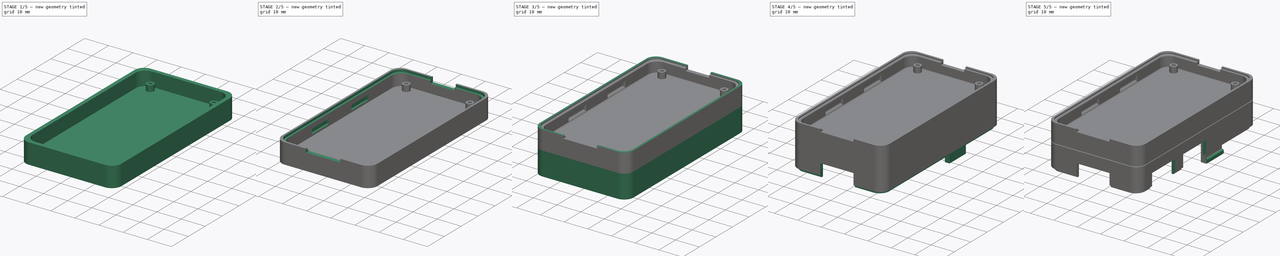
[diagram: build sequence overview — one tinted view per stage of 5, left to right]
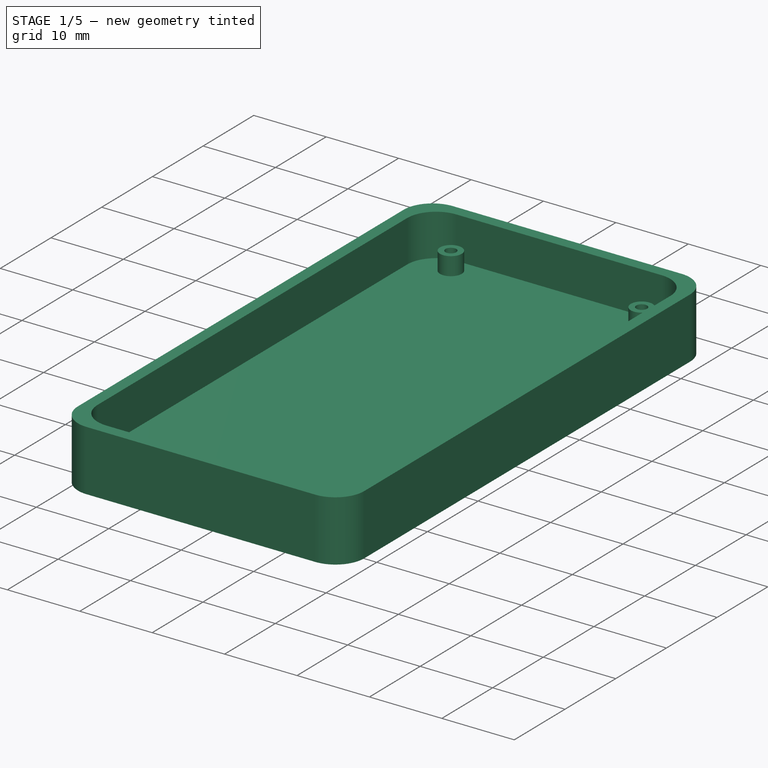
[diagram: stage 1 of 5 — iso view after this stage's code; geometry added in this stage tinted green]
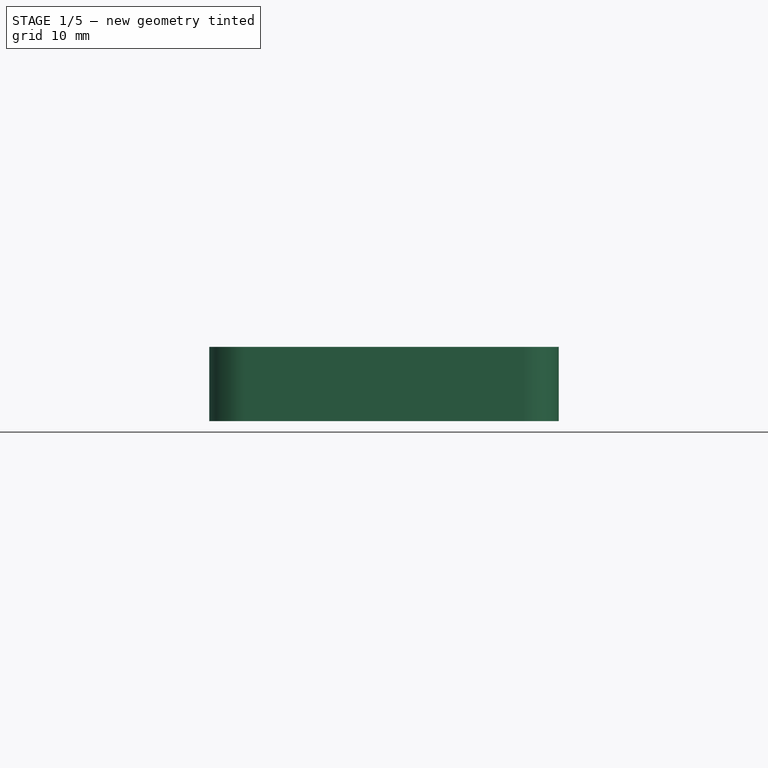
[diagram: stage 1 of 5 — front view after this stage's code; geometry added in this stage tinted green]
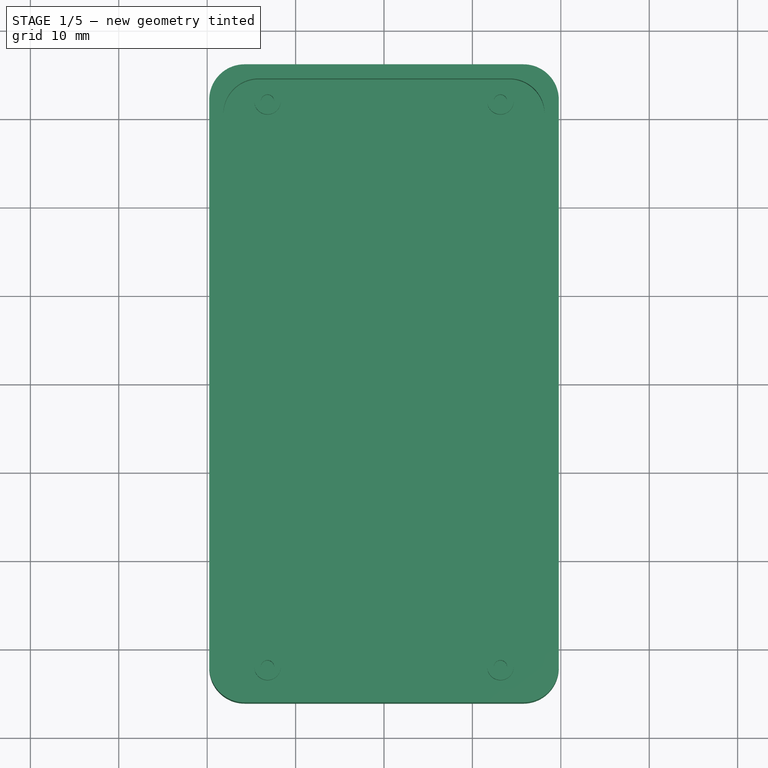
[diagram: stage 1 of 5 — top view after this stage's code; geometry added in this stage tinted green]
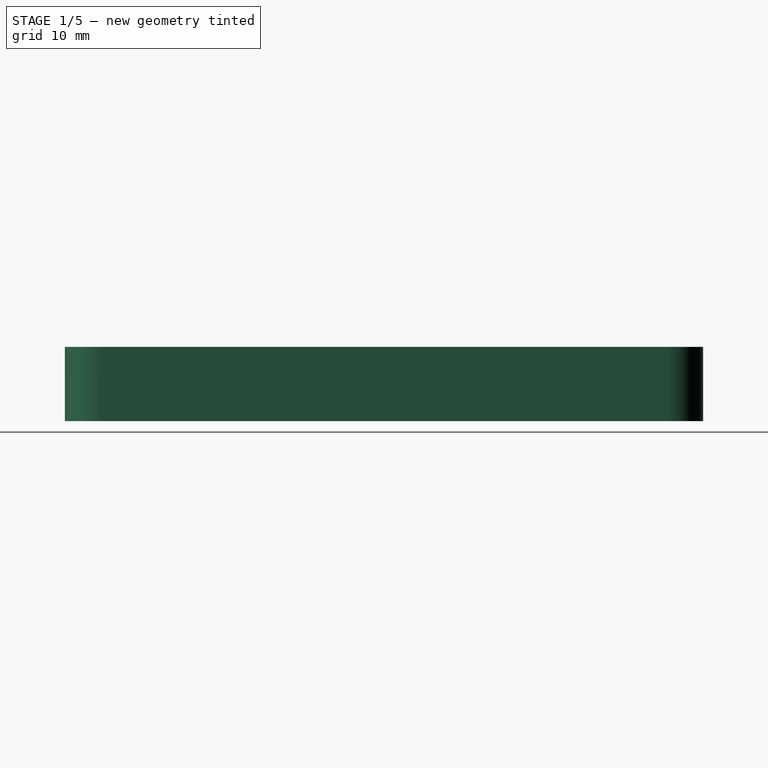
[diagram: stage 1 of 5 — right view after this stage's code; geometry added in this stage tinted green]
FCSTD DOCUMENT  (FreeCAD 2024.2R37191 (Git))
Label: GP2040-CE Keyboard Converter
License: All rights reserved
LicenseURL: http://en.wikipedia.org/wiki/All_rights_reserved
objects: Sketcher::SketchObject×22, PartDesign::Pocket×13, PartDesign::Pad×9, PartDesign::Chamfer×4, PartDesign::Body×2, Spreadsheet::Sheet×1
note: 76 computed .brp shape members not serialized (recipe doc carries the construction recipe); baked Part::Feature solids carry a one-line shape summary decoded from their .brp

FEATURE [Spreadsheet::Sheet] Spreadsheet
  cells = A1='Tolerance; B1(Tolerance)=0.1; C1='mm; A2='PCBThickness; B2(PCBThickness)=1.69; C2='mm; A3='PCBWidth; B3(PCBWidth)=30.34; C3='mm; A4='PCBLength; B4(PCBLength)=67.99; C4='mm; A5='PCBWallGap_Vert; B5(PCBWallGap_Vert)=0.5; C5='mm; A6='PCBWallGap_Hor; B6(PCBWallGap_Hor)=3; C6='mm; A7='VerticalMountHoleSpacing; B7(VerticalMountHoleSpacing)=64; C7='mm; A8='HorizontalMountHoleSpacing; B8(HorizontalMountHoleSpacing)=26.35; C8='mm; A9='CaseBottomThickness; B9(CaseBottomThickness)=2.6; C9='mm; A10='CaseWallThickness; B10(CaseWallThickness)=1.6; C10='mm; A11='CaseChamfer; B11(CaseChamfer)=0.3; C11='mm; A12='CaseCornerRadius; B12(CaseCornerRadius)=4; C12='mm; A13='ScrewDiameter; B13(ScrewDiameter)=2; C13='mm; A14='HeatsetOD; B14(HeatsetOD)=1.5; C14='mm; A15='HeatsetHeight; B15(HeatsetHeight)=4; C15='mm; A16='USB_C_Height; B16(USB_C_Height)=3.21; C16='mm; A17='USB_C_Width; B17(USB_C_Width)=9; C17='mm; A18='USB_C_Radius; B18(USB_C_Radius)=1.6; C18='mm; A19='USB_C_Gap; B19(USB_C_Gap)=0.5; C19='mm; A20='USB_C_Chamfer; B20(USB_C_Chamfer)=1; C20='mm; A21='USB_C_Angle; B21(USB_C_Angle)=30; C21='deg; A22='USB_C_VertOffset; B22(USB_C_VertOffset)=0; C22='mm; A23='USB_A_Height; B23(USB_A_Height)=6.2; C23='mm; A24='USB_A_Width; B24(USB_A_Width)=13.2; C24='mm; A25='USB_A_Gap; B25(USB_A_Gap)=0.5; C25='mm; A26='USB_A_VertOffset; B26(USB_A_VertOffset)=0.5; C26='mm; A27='Has_USB_A_Hub; B27(Has_USB_A_Hub)=0; C27='bool; A28='HubWidth; B28(HubWidth)=40.345; C28='mm; A29='AdditionalHubWidth; B29(AdditionalHubWidth)==Has_USB_A_Hub == 1 ? 10 : 0; C29='mm; A30='USB_A_Hub_Spacing; B30(USB_A_Hub_Spacing)=19; C30='mm; A31='USB_A_Hub_Hor_Offset; B31(USB_A_Hub_Hor_Offset)=15; C31='mm; A32='USB_A_Hub_Ver_Offset; B32(USB_A_Hub_Ver_Offset)=30; C32='mm; A33='TactSwitchHeight; B33(TactSwitchHeight)=11; C33='mm; A34='TactSwitchDiameter; B34(TactSwitchDiameter)=3; C34='mm; A35='ExposedButtonHeight; B35(ExposedButtonHeight)=0.5; C35='mm; A36='PCBTopClearance; B36(PCBTopClearance)==TactSwitchHeight - CaseWallThickness - ExposedButtonHeight; C36='mm; A37='PCB_BottomClearance; B37(PCB_BottomClearance)=2.5; C37='mm; A38='TopWallHeight; B38(TopWallHeight)==PCBTopClearance - AddPostHeight; C38='mm; A39='BottomWallHeight; B39(BottomWallHeight)==PCB_BottomClearance + PCBThickness + USB_C_Height / 2; C39='mm; A40='AddPostHeight; B40(AddPostHeight)==USB_C_Height / 2; C40='mm; A41='BootResetHeight; B41(BootResetHeight)=3; C41='mm; A42='BootResetDiameter; B42(BootResetDiameter)=1.7; C42='mm; A43='BootResetFromEdge; B43(BootResetFromEdge)=8; C43='mm; A44='BootResetHorSpacing; B44(BootResetHorSpacing)=16; C44='mm; A45='TactSwitchFromSideEdge; B45(TactSwitchFromSideEdge)=9.67; C45='mm; A46='TactSwitchVertSpacing; B46(TactSwitchVertSpacing)=8.525; C46='mm; A47='TactSwitchHoriSpacing; B47(TactSwitchHoriSpacing)=11; C47='mm; A48='TactSwitchFromBottomEdge; B48(TactSwitchFromBottomEdge)=19.3; C48='mm; A49='TextHeight; B49(TextHeight)=3; C49='mm; A50='TextDepth; B50(TextDepth)=0.6; C50='mm; A51='CountersinkDistance; B51(CountersinkDistance)=1; C51='mm; A52='CountersinkAngle; B52(CountersinkAngle)=45; C52='deg; A53='Snap_Width; B53(Snap_Width)=10; C53='mm; A54='Snap_Height; B54(Snap_Height)=5; C54='mm; A55='Snap_Depth; B55(Snap_Depth)=2; C55='mm; A56='Snap_Hor_Space; B56(Snap_Hor_Space)=23.5; C56='mm; A57='Snap_Tab_Height; B57(Snap_Tab_Height)=2; C57='mm; A58='Snap_Rim_Height; B58(Snap_Rim_Height)=1; C58='mm; A59='ShadowLine; B59(ShadowLine)=0.4; C59='mm
FEATURE [Sketcher::SketchObject] Sketch  label="BottomBase"
  AttachmentSupport = -> [XY_Plane]
  FullyConstrained = true
  MapMode = 5
  expr: Constraints[15] = Spreadsheet.CaseCornerRadius
  expr: Constraints[16] = Spreadsheet.PCBLength + Spreadsheet.PCBWallGap_Vert * 2 + Spreadsheet.CaseWallThickness * 2
  expr: Constraints[17] = (Spreadsheet.PCBLength + Spreadsheet.PCBWallGap_Vert * 2 + Spreadsheet.CaseWallThickness * 2) / 2
  expr: Constraints[18] = (Spreadsheet.PCBWidth + Spreadsheet.PCBWallGap_Hor * 2 + Spreadsheet.CaseWallThickness * 2) / 2
  expr: Constraints[19] = (Spreadsheet.PCBWidth + Spreadsheet.PCBWallGap_Hor * 2 + Spreadsheet.CaseWallThickness * 2) / 2 + Spreadsheet.AdditionalHubWidth
  sketch-geometry (8):
    g0: LineSegment StartX=-15.77 StartY=-36.095 StartZ=0 EndX=15.77 EndY=-36.095 EndZ=0
    g1: LineSegment StartX=19.77 StartY=-32.095 StartZ=0 EndX=19.77 EndY=32.095 EndZ=0
    g2: LineSegment StartX=15.77 StartY=36.095 StartZ=0 EndX=-15.77 EndY=36.095 EndZ=0
    g3: LineSegment StartX=-19.77 StartY=32.095 StartZ=0 EndX=-19.77 EndY=-32.095 EndZ=0
    g4: ArcOfCircle CenterX=-15.77 CenterY=32.095 CenterZ=0 NormalX=0 NormalY=0 NormalZ=1 AngleXU=0 Radius=4 StartAngle=1.5708 EndAngle=3.14159
    g5: ArcOfCircle CenterX=15.77 CenterY=32.095 CenterZ=0 NormalX=0 NormalY=0 NormalZ=1 AngleXU=0 Radius=4 StartAngle=0 EndAngle=1.5708
    g6: ArcOfCircle CenterX=-15.77 CenterY=-32.095 CenterZ=0 NormalX=0 NormalY=0 NormalZ=1 AngleXU=0 Radius=4 StartAngle=3.14159 EndAngle=4.71239
    g7: ArcOfCircle CenterX=15.77 CenterY=-32.095 CenterZ=0 NormalX=0 NormalY=0 NormalZ=1 AngleXU=0 Radius=4 StartAngle=4.71239 EndAngle=6.28319
  constraints (20):
    c: Horizontal(g0)
    c: Horizontal(g2)
    c: Vertical(g1)
    c: Vertical(g3)
    c: Tangent(g3,g4) = -1.5708
    c: Tangent(g2,g4) = -1.5708
    c: Tangent(g2,g5) = -1.5708
    c: Tangent(g1,g5) = -1.5708
    c: Tangent(g3,g6) = -1.5708
    c: Tangent(g0,g6) = -1.5708
    c: Tangent(g0,g7) = -1.5708
    c: Tangent(g1,g7) = -1.5708
    c: Equal(g6,g7)
    c: Equal(g7,g5)
    c: Equal(g5,g4)
    c: Radius(g4) = 4
    c: DistanceY(g0,g2) = 72.19
    c: DistanceY(g-1,g2) = 36.095
    c: DistanceX(g3,g-1) = 19.77
    c: DistanceX(g-1,g1) = 19.77
FEATURE [PartDesign::Pad] Pad
  Direction = (0,0,1)
  Length = 2.6
  Length2 = 10
  Profile = -> Sketch
  ReferenceAxis = -> Sketch [N_Axis]
  Suppressed = false
  Type = 0
  expr: Length = Spreadsheet.CaseBottomThickness
FEATURE [Sketcher::SketchObject] Sketch001  label="PostHoles"
  AttachmentSupport = -> [Pad]
  FullyConstrained = true
  MapMode = 5
  Placement = pos=(0,0,2.6) rot=(0,0,1;0rad)
  expr: Constraints[11] = Spreadsheet.ScrewDiameter * 1.1 / 2
  expr: Constraints[4] = Spreadsheet.VerticalMountHoleSpacing
  expr: Constraints[5] = Spreadsheet.VerticalMountHoleSpacing / 2
  expr: Constraints[6] = Spreadsheet.HorizontalMountHoleSpacing / 2
  expr: Constraints[7] = Spreadsheet.HorizontalMountHoleSpacing
  sketch-geometry (4):
    g0: Circle CenterX=-13.175 CenterY=32 CenterZ=0 NormalX=0 NormalY=0 NormalZ=1 AngleXU=0 Radius=1.1
    g1: Circle CenterX=13.175 CenterY=32 CenterZ=0 NormalX=0 NormalY=0 NormalZ=1 AngleXU=0 Radius=1.1
    g2: Circle CenterX=13.175 CenterY=-32 CenterZ=0 NormalX=0 NormalY=0 NormalZ=1 AngleXU=0 Radius=1.1
    g3: Circle CenterX=-13.175 CenterY=-32 CenterZ=0 NormalX=0 NormalY=0 NormalZ=1 AngleXU=0 Radius=1.1
  constraints (12):
    c: Vertical(g0,g3)
    c: Vertical(g2,g1)
    c: Horizontal(g0,g1)
    c: Horizontal(g2,g3)
    c: DistanceY(g3,g0) = 64
    c: DistanceY(g-1,g0) = 32
    c: DistanceX(g3,g-1) = 13.175
    c: DistanceX(g3,g2) = 26.35
    c: Equal(g0,g1)
    c: Equal(g1,g2)
    c: Equal(g2,g3)
    c: Radius(g0) = 1.1
FEATURE [PartDesign::Pocket] Pocket
  BaseFeature = -> Pad
  Direction = (0,0,-1)
  Length = 1
  Length2 = 5
  Profile = -> Sketch001
  ReferenceAxis = -> Sketch001 [N_Axis]
  Suppressed = false
  Type = 0
  expr: Length = Spreadsheet.CaseBottomThickness - Spreadsheet.CaseWallThickness
FEATURE [Sketcher::SketchObject] Sketch002  label="MountPosts"
  AttachmentSupport = -> [Pocket]
  ExternalGeometry = -> [Pocket]
  FullyConstrained = true
  MapMode = 5
  Placement = pos=(0,0,2.6) rot=(0,0,1;0rad)
  expr: Constraints[4] = Spreadsheet.HeatsetOD * 2
  sketch-geometry (4):
    g0: Circle CenterX=-13.175 CenterY=32 CenterZ=0 NormalX=0 NormalY=0 NormalZ=1 AngleXU=0 Radius=1.5
    g1: Circle CenterX=13.175 CenterY=32 CenterZ=0 NormalX=0 NormalY=0 NormalZ=1 AngleXU=0 Radius=1.5
    g2: Circle CenterX=13.175 CenterY=-32 CenterZ=0 NormalX=0 NormalY=0 NormalZ=1 AngleXU=0 Radius=1.5
    g3: Circle CenterX=-13.175 CenterY=-32 CenterZ=0 NormalX=0 NormalY=0 NormalZ=1 AngleXU=0 Radius=1.5
  constraints (8):
    c: Coincident(g3,g-5)
    c: Coincident(g2,g-6)
    c: Coincident(g1,g-4)
    c: Coincident(g0,g-3)
    c: Diameter(g0) = 3
    c: Equal(g0,g1)
    c: Equal(g3,g2)
    c: Equal(g2,g1)
FEATURE [PartDesign::Pad] Pad001
  BaseFeature = -> Pocket
  Direction = (0,0,1)
  Length = 2.5
  Length2 = 10
  Profile = -> Sketch002
  ReferenceAxis = -> Sketch002 [N_Axis]
  Suppressed = false
  Type = 0
  expr: Length = Spreadsheet.PCB_BottomClearance
FEATURE [Sketcher::SketchObject] Sketch003  label="MountPostHoles"
  AttachmentSupport = -> [Pad001]
  ExternalGeometry = -> [Pad001]
  FullyConstrained = true
  MapMode = 5
  Placement = pos=(0,0,5.1) rot=(0,0,1;0rad)
  expr: Constraints[7] = Spreadsheet.HeatsetOD
  sketch-geometry (4):
    g0: Circle CenterX=-13.175 CenterY=-32 CenterZ=0 NormalX=0 NormalY=0 NormalZ=1 AngleXU=0 Radius=0.75
    g1: Circle CenterX=13.175 CenterY=-32 CenterZ=0 NormalX=0 NormalY=0 NormalZ=1 AngleXU=0 Radius=0.75
    g2: Circle CenterX=-13.175 CenterY=32 CenterZ=0 NormalX=0 NormalY=0 NormalZ=1 AngleXU=0 Radius=0.75
    g3: Circle CenterX=13.175 CenterY=32 CenterZ=0 NormalX=0 NormalY=0 NormalZ=1 AngleXU=0 Radius=0.75
  constraints (8):
    c: Equal(g2,g3)
    c: Equal(g3,g1)
    c: Equal(g1,g0)
    c: Coincident(g2,g-3)
    c: Coincident(g3,g-4)
    c: Coincident(g0,g-5)
    c: Coincident(g1,g-6)
    c: Diameter(g2) = 1.5
FEATURE [PartDesign::Pocket] Pocket001
  BaseFeature = -> Pad001
  Direction = (0,0,-1)
  Length = 4
  Length2 = 5
  Profile = -> Sketch003
  ReferenceAxis = -> Sketch003 [N_Axis]
  Suppressed = false
  Type = 0
  expr: Length = Spreadsheet.HeatsetHeight
FEATURE [Sketcher::SketchObject] Sketch004  label="BottomWalls"
  AttachmentSupport = -> [Pocket001]
  ExternalGeometry = -> [Pocket001]
  FullyConstrained = true
  MapMode = 5
  Placement = pos=(0,0,2.6) rot=(0,0,1;0rad)
  expr: Constraints[15] = Spreadsheet.CaseWallThickness
  expr: Constraints[16] = Spreadsheet.CaseWallThickness
  expr: Constraints[17] = Spreadsheet.CaseWallThickness
  expr: Constraints[18] = Spreadsheet.CaseCornerRadius
  expr: Constraints[19] = Spreadsheet.CaseWallThickness
  sketch-geometry (16):
    g0: LineSegment StartX=-14.17 StartY=-34.495 StartZ=0 EndX=14.17 EndY=-34.495 EndZ=0
    g1: LineSegment StartX=18.17 StartY=-30.495 StartZ=0 EndX=18.17 EndY=30.495 EndZ=0
    g2: LineSegment StartX=14.17 StartY=34.495 StartZ=0 EndX=-14.17 EndY=34.495 EndZ=0
    g3: LineSegment StartX=-18.17 StartY=30.495 StartZ=0 EndX=-18.17 EndY=-30.495 EndZ=0
    g4: ArcOfCircle CenterX=-14.17 CenterY=30.495 CenterZ=0 NormalX=0 NormalY=0 NormalZ=1 AngleXU=0 Radius=4 StartAngle=1.5708 EndAngle=3.14159
    g5: ArcOfCircle CenterX=14.17 CenterY=30.495 CenterZ=0 NormalX=0 NormalY=0 NormalZ=1 AngleXU=0 Radius=4 StartAngle=1e-16 EndAngle=1.5708
    g6: ArcOfCircle CenterX=14.17 CenterY=-30.495 CenterZ=0 NormalX=0 NormalY=0 NormalZ=1 AngleXU=0 Radius=4 StartAngle=4.71239 EndAngle=6.28319
    g7: ArcOfCircle CenterX=-14.17 CenterY=-30.495 CenterZ=0 NormalX=0 NormalY=0 NormalZ=1 AngleXU=0 Radius=4 StartAngle=3.14159 EndAngle=4.71239
    g8: LineSegment StartX=-15.77 StartY=36.095 StartZ=0 EndX=15.77 EndY=36.095 EndZ=0
    g9: LineSegment StartX=19.77 StartY=32.095 StartZ=0 EndX=19.77 EndY=-32.095 EndZ=0
    g10: LineSegment StartX=15.77 StartY=-36.095 StartZ=0 EndX=-15.77 EndY=-36.095 EndZ=0
    g11: LineSegment StartX=-19.77 StartY=-32.095 StartZ=0 EndX=-19.77 EndY=32.095 EndZ=0
    g12: ArcOfCircle CenterX=-15.77 CenterY=32.095 CenterZ=0 NormalX=0 NormalY=0 NormalZ=1 AngleXU=0 Radius=4 StartAngle=1.5708 EndAngle=3.14159
    g13: ArcOfCircle CenterX=15.77 CenterY=32.095 CenterZ=0 NormalX=0 NormalY=0 NormalZ=1 AngleXU=0 Radius=4 StartAngle=1.5e-15 EndAngle=1.5708
    g14: ArcOfCircle CenterX=-15.77 CenterY=-32.095 CenterZ=0 NormalX=0 NormalY=0 NormalZ=1 AngleXU=0 Radius=4 StartAngle=3.14159 EndAngle=4.71239
    g15: ArcOfCircle CenterX=15.77 CenterY=-32.095 CenterZ=0 NormalX=0 NormalY=0 NormalZ=1 AngleXU=0 Radius=4 StartAngle=4.71239 EndAngle=6.28319
  constraints (40):
    c: Horizontal(g0)
    c: Horizontal(g2)
    c: Vertical(g1)
    c: Vertical(g3)
    c: Tangent(g2,g4) = -1.5708
    c: Tangent(g3,g4) = -1.5708
    c: Tangent(g1,g5) = -1.5708
    c: Tangent(g2,g5) = -1.5708
    c: Tangent(g0,g6) = -1.5708
    c: Tangent(g1,g6) = -1.5708
    c: Tangent(g0,g7) = -1.5708
    c: Tangent(g3,g7) = -1.5708
    c: Equal(g4,g5)
    c: Equal(g5,g6)
    c: Equal(g6,g7)
    c: DistanceX(g-3,g3) = 1.6
    c: DistanceX(g1,g-5) = 1.6
    c: DistanceY(g2,g-4) = 1.6
    c: Radius(g6) = 4
    c: DistanceY(g-6,g0) = 1.6
    c: Coincident(g8,g-4)
    c: Coincident(g8,g-4)
    c: Coincident(g9,g-5)
    c: Coincident(g9,g-5)
    c: Coincident(g10,g-6)
    c: Coincident(g10,g-6)
    c: Coincident(g11,g-3)
    c: Coincident(g11,g-3)
    c: Coincident(g12,g11)
    c: Coincident(g12,g8)
    c: Coincident(g13,g8)
    c: Coincident(g13,g9)
    c: Coincident(g14,g11)
    c: Coincident(g14,g10)
    c: Coincident(g15,g10)
    c: Coincident(g9,g15)
    c: Equal(g15,g6)
    c: Equal(g14,g7)
    c: Equal(g12,g4)
    c: Equal(g5,g13)
FEATURE [PartDesign::Pad] Pad002
  BaseFeature = -> Pocket001
  Direction = (0,0,1)
  Length = 5.795
  Length2 = 10
  Profile = -> Sketch004
  ReferenceAxis = -> Sketch004 [N_Axis]
  Suppressed = false
  Type = 0
  expr: Length = Spreadsheet.BottomWallHeight
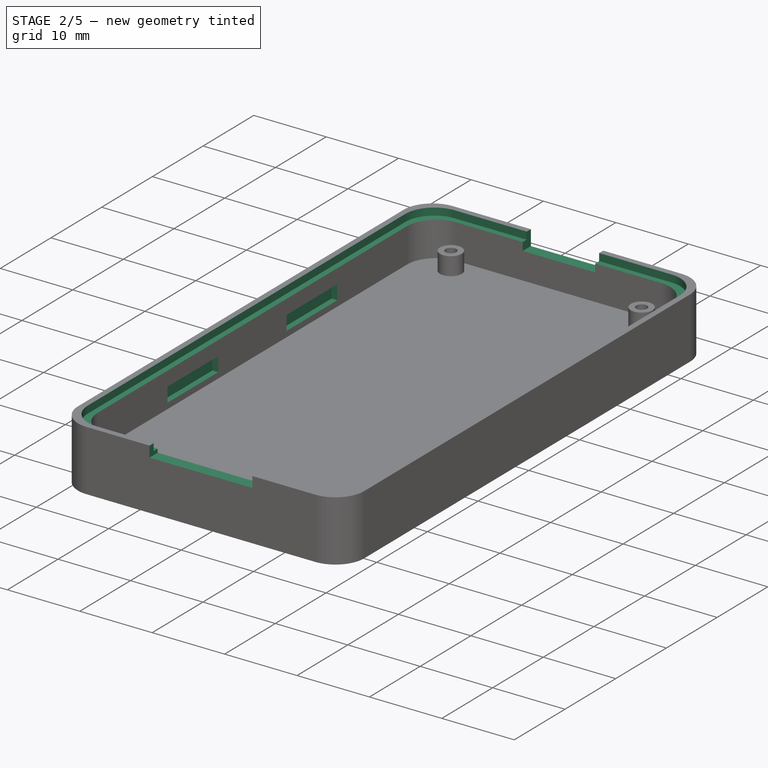
[diagram: stage 2 of 5 — iso view after this stage's code; geometry added in this stage tinted green]
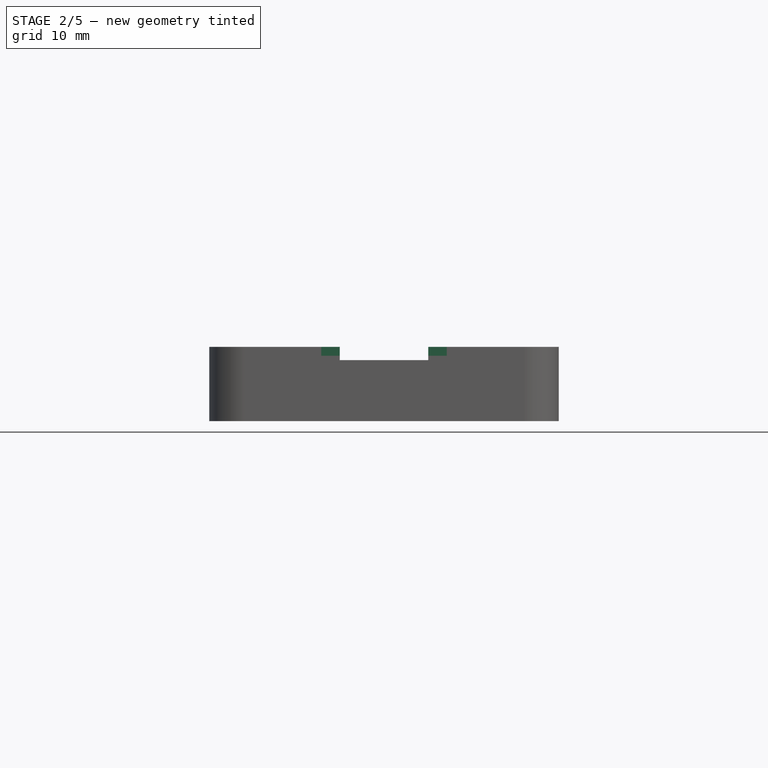
[diagram: stage 2 of 5 — front view after this stage's code; geometry added in this stage tinted green]
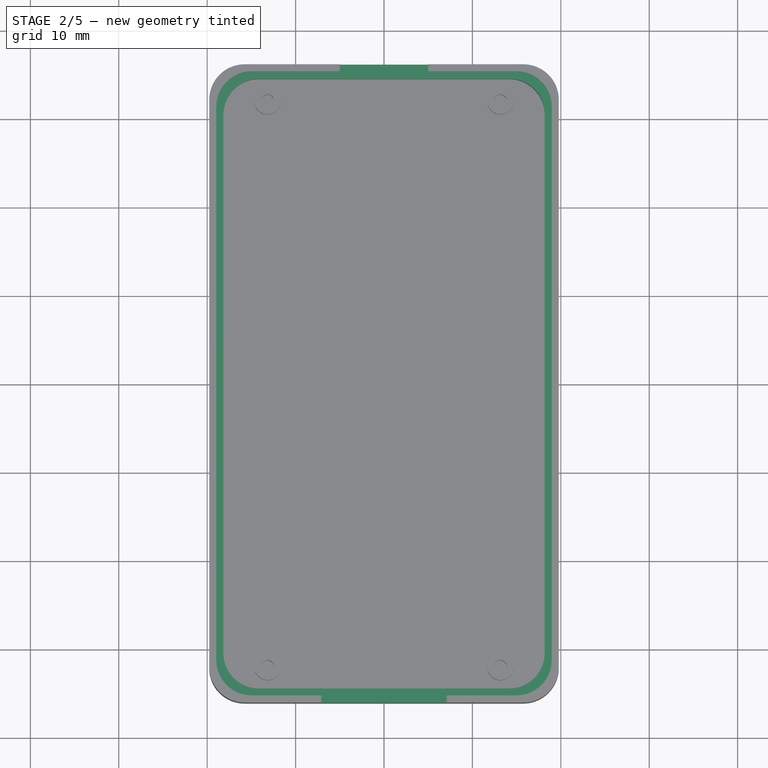
[diagram: stage 2 of 5 — top view after this stage's code; geometry added in this stage tinted green]
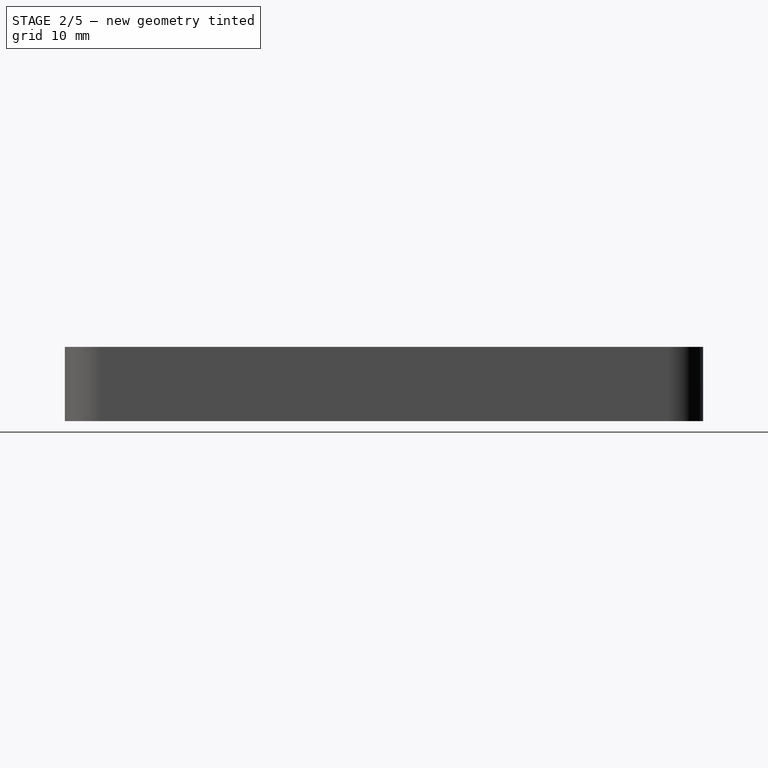
[diagram: stage 2 of 5 — right view after this stage's code; geometry added in this stage tinted green]
FEATURE [Sketcher::SketchObject] Sketch011  label="BottomSnapRim"
  AttachmentSupport = -> [Pad002]
  ExternalGeometry = -> [Pad002]
  FullyConstrained = true
  MapMode = 5
  Placement = pos=(0,0,8.395) rot=(0,0,1;0rad)
  expr: Constraints[62] = Spreadsheet.CaseWallThickness / 2
  expr: Constraints[63] = Spreadsheet.CaseWallThickness / 2
  expr: Constraints[64] = Spreadsheet.CaseWallThickness / 2
  expr: Constraints[74] = Spreadsheet.CaseWallThickness / 2
  sketch-geometry (32):
    g0: ArcOfCircle CenterX=-14.97 CenterY=31.295 CenterZ=0 NormalX=0 NormalY=0 NormalZ=1 AngleXU=0 Radius=4 StartAngle=1.5708 EndAngle=3.14159
    g1: ArcOfCircle CenterX=14.97 CenterY=31.295 CenterZ=0 NormalX=0 NormalY=0 NormalZ=1 AngleXU=0 Radius=4 StartAngle=5e-16 EndAngle=1.5708
    g2: LineSegment StartX=18.97 StartY=31.295 StartZ=0 EndX=18.97 EndY=-31.295 EndZ=0
    g3: ArcOfCircle CenterX=14.97 CenterY=-31.295 CenterZ=0 NormalX=0 NormalY=0 NormalZ=1 AngleXU=0 Radius=4 StartAngle=4.71239 EndAngle=6.28319
    g4: ArcOfCircle CenterX=-14.97 CenterY=-31.295 CenterZ=0 NormalX=0 NormalY=0 NormalZ=1 AngleXU=0 Radius=4 StartAngle=3.14159 EndAngle=4.71239
    g5: LineSegment StartX=-18.97 StartY=-31.295 StartZ=0 EndX=-18.97 EndY=31.295 EndZ=0
    g6: ArcOfCircle CenterX=-14.17 CenterY=30.495 CenterZ=0 NormalX=0 NormalY=0 NormalZ=1 AngleXU=0 Radius=4 StartAngle=1.5708 EndAngle=3.14159
    g7: ArcOfCircle CenterX=14.17 CenterY=30.495 CenterZ=0 NormalX=0 NormalY=0 NormalZ=1 AngleXU=0 Radius=4 StartAngle=0 EndAngle=1.5708
    g8: LineSegment StartX=18.17 StartY=30.495 StartZ=0 EndX=18.17 EndY=-30.495 EndZ=0
    g9: ArcOfCircle CenterX=14.17 CenterY=-30.495 CenterZ=0 NormalX=0 NormalY=0 NormalZ=1 AngleXU=0 Radius=4 StartAngle=4.71239 EndAngle=6.28319
    g10: ArcOfCircle CenterX=-14.17 CenterY=-30.495 CenterZ=0 NormalX=0 NormalY=0 NormalZ=1 AngleXU=0 Radius=4 StartAngle=3.14159 EndAngle=4.71239
    g11: LineSegment StartX=-18.17 StartY=-30.495 StartZ=0 EndX=-18.17 EndY=30.495 EndZ=0
    g12: LineSegment StartX=14.97 StartY=35.295 StartZ=0 EndX=-14.97 EndY=35.295 EndZ=0
    g13: LineSegment StartX=-14.17 StartY=34.495 StartZ=0 EndX=14.17 EndY=34.495 EndZ=0
    g14: LineSegment StartX=14.17 StartY=-34.495 StartZ=0 EndX=-14.17 EndY=-34.495 EndZ=0
    g15: LineSegment StartX=14.97 StartY=-35.295 StartZ=0 EndX=-14.97 EndY=-35.295 EndZ=0
    g16: LineSegment StartX=-14.97 StartY=35.295 StartZ=0 EndX=-14.97 EndY=31.295 EndZ=0
    g17: LineSegment StartX=-14.97 StartY=31.295 StartZ=0 EndX=-18.97 EndY=31.295 EndZ=0
    g18: LineSegment StartX=14.97 StartY=35.295 StartZ=0 EndX=14.97 EndY=31.295 EndZ=0
    g19: LineSegment StartX=14.97 StartY=31.295 StartZ=0 EndX=18.97 EndY=31.295 EndZ=0
    g20: LineSegment StartX=14.17 StartY=30.495 StartZ=0 EndX=18.17 EndY=30.495 EndZ=0
    g21: LineSegment StartX=14.17 StartY=30.495 StartZ=0 EndX=14.17 EndY=34.495 EndZ=0
    g22: LineSegment StartX=-14.17 StartY=30.495 StartZ=0 EndX=-14.17 EndY=34.495 EndZ=0
    g23: LineSegment StartX=-14.17 StartY=30.495 StartZ=0 EndX=-18.17 EndY=30.495 EndZ=0
    g24: LineSegment StartX=-14.17 StartY=-30.495 StartZ=0 EndX=-14.17 EndY=-34.495 EndZ=0
    g25: LineSegment StartX=-14.17 StartY=-30.495 StartZ=0 EndX=-18.17 EndY=-30.495 EndZ=0
    g26: LineSegment StartX=-14.97 StartY=-31.295 StartZ=0 EndX=-14.97 EndY=-35.295 EndZ=0
    g27: LineSegment StartX=-14.97 StartY=-31.295 StartZ=0 EndX=-18.97 EndY=-31.295 EndZ=0
    g28: LineSegment StartX=14.17 StartY=-30.495 StartZ=0 EndX=14.17 EndY=-34.495 EndZ=0
    g29: LineSegment StartX=14.17 StartY=-30.495 StartZ=0 EndX=18.17 EndY=-30.495 EndZ=0
    g30: LineSegment StartX=14.97 StartY=-31.295 StartZ=0 EndX=18.97 EndY=-31.295 EndZ=0
    g31: LineSegment StartX=14.97 StartY=-31.295 StartZ=0 EndX=14.97 EndY=-35.295 EndZ=0
  constraints (75):
    c: Tangent(g1,g2) = 1.5708
    c: Tangent(g2,g3) = 1.5708
    c: Tangent(g4,g5) = 1.5708
    c: Tangent(g5,g0) = 1.5708
    c: Vertical(g2)
    c: Vertical(g5)
    c: Equal(g0,g1)
    c: Equal(g1,g3)
    c: Equal(g3,g4)
    c: Tangent(g7,g8) = 1.5708
    c: Tangent(g8,g9) = 1.5708
    c: Tangent(g10,g11) = 1.5708
    c: Tangent(g11,g6) = 1.5708
    c: Vertical(g11)
    c: Equal(g6,g7)
    c: Equal(g7,g9)
    c: Equal(g0,g6)
    c: Coincident(g12,g1)
    c: Horizontal(g12)
    c: Coincident(g13,g6)
    c: Coincident(g14,g9)
    c: Coincident(g15,g3)
    c: Horizontal(g15)
    c: Horizontal(g13)
    c: Coincident(g16,g0)
    c: Coincident(g16,g0)
    c: Coincident(g17,g0)
    c: Coincident(g17,g0)
    c: Vertical(g16)
    c: Coincident(g18,g1)
    c: Coincident(g19,g1)
    c: Coincident(g19,g1)
    c: Coincident(g20,g7)
    c: Coincident(g20,g7)
    c: Coincident(g21,g7)
    c: Coincident(g21,g7)
    c: Coincident(g22,g6)
    c: Coincident(g23,g6)
    c: Coincident(g23,g6)
    c: Coincident(g24,g10)
    c: Coincident(g24,g10)
    c: Coincident(g25,g10)
    c: Coincident(g25,g10)
    c: Coincident(g26,g4)
    c: Coincident(g26,g4)
    c: Coincident(g27,g4)
    c: Coincident(g27,g4)
    c: Coincident(g29,g9)
    c: Coincident(g29,g8)
    c: Coincident(g30,g3)
    c: Coincident(g30,g2)
    c: Coincident(g31,g3)
    c: Coincident(g31,g3)
    c: Coincident(g28,g9)
    c: Coincident(g28,g9)
    c: Coincident(g6,g22)
    c: Vertical(g18)
    c: Vertical(g21)
    c: Vertical(g22)
    c: Vertical(g26)
    c: Vertical(g31)
    c: Coincident(g18,g1)
    c: DistanceY(g13,g1) = 0.8
    c: DistanceX(g4,g10) = 0.8
    c: DistanceX(g8,g2) = 0.8
    c: Coincident(g14,g10)
    c: Coincident(g15,g4)
    c: Coincident(g0,g12)
    c: Coincident(g13,g7)
    c: Coincident(g10,g-4)
    c: Coincident(g10,g-6)
    c: Coincident(g9,g-6)
    c: Coincident(g8,g-5)
    c: Coincident(g-5,g7)
    c: DistanceY(g3,g9) = 0.8
FEATURE [PartDesign::Pocket] Pocket009
  BaseFeature = -> Pad002
  Direction = (0,0,-1)
  Length = 1
  Length2 = 5
  Profile = -> Sketch011
  ReferenceAxis = -> Sketch011 [N_Axis]
  Suppressed = false
  Type = 0
  expr: Length = Spreadsheet.Snap_Rim_Height
FEATURE [Sketcher::SketchObject] Sketch012  label="BottomUSB-C"
  AttachmentSupport = -> [Pocket009]
  ExternalGeometry = -> [Pocket009]
  FullyConstrained = true
  MapMode = 5
  Placement = pos=(0,36.095,0) rot=(0,0.707107,0.707107;3.14159rad)
  expr: Constraints[10] = Spreadsheet.USB_C_Width + 2 * Spreadsheet.USB_C_Gap
  expr: Constraints[11] = Spreadsheet.USB_C_Height + 2 * Spreadsheet.USB_C_Gap
  expr: Constraints[12] = Spreadsheet.USB_C_VertOffset
  sketch-geometry (5):
    g0: LineSegment StartX=-5 StartY=6.29 StartZ=0 EndX=-5 EndY=10.5 EndZ=0
    g1: LineSegment StartX=-5 StartY=10.5 StartZ=0 EndX=5 EndY=10.5 EndZ=0
    g2: LineSegment StartX=5 StartY=10.5 StartZ=0 EndX=5 EndY=6.29 EndZ=0
    g3: LineSegment StartX=5 StartY=6.29 StartZ=0 EndX=-5 EndY=6.29 EndZ=0
    g4: GeomPoint X=0 Y=8.395 Z=0
  constraints (13):
    c: Coincident(g0,g1)
    c: Coincident(g1,g2)
    c: Coincident(g2,g3)
    c: Coincident(g3,g0)
    c: Horizontal(g1)
    c: Horizontal(g3)
    c: Vertical(g0)
    c: Vertical(g2)
    c: Symmetric(g1,g0,g4)
    c: PointOnObject(g4,g-2)
    c: DistanceX(g1,g1) = 10
    c: DistanceY(g2,g2) = 4.21
    c: DistanceY(g-3,g4) = 0
FEATURE [PartDesign::Pocket] Pocket010
  BaseFeature = -> Pocket009
  Direction = (0,-1,2e-16)
  Length = 0
  Length2 = 5
  Profile = -> Sketch012
  ReferenceAxis = -> Sketch012 [N_Axis]
  Suppressed = false
  Type = 3
  UpToFace = -> Pocket009 [Face35]
FEATURE [Sketcher::SketchObject] Sketch013  label="BottomUSB-A"
  AttachmentSupport = -> [Pocket010]
  ExternalGeometry = -> [Pocket010]
  FullyConstrained = true
  MapMode = 5
  Placement = pos=(0,-36.095,0) rot=(1,0,0;1.5708rad)
  expr: Constraints[10] = Spreadsheet.USB_A_Width + 2 * Spreadsheet.USB_A_Gap
  expr: Constraints[11] = Spreadsheet.USB_A_Height + 2 * Spreadsheet.USB_A_Gap
  expr: Constraints[12] = Spreadsheet.AddPostHeight + Spreadsheet.USB_A_VertOffset
  sketch-geometry (5):
    g0: LineSegment StartX=-7.1 StartY=14.1 StartZ=0 EndX=-7.1 EndY=6.9 EndZ=0
    g1: LineSegment StartX=-7.1 StartY=6.9 StartZ=0 EndX=7.1 EndY=6.9 EndZ=0
    g2: LineSegment StartX=7.1 StartY=6.9 StartZ=0 EndX=7.1 EndY=14.1 EndZ=0
    g3: LineSegment StartX=7.1 StartY=14.1 StartZ=0 EndX=-7.1 EndY=14.1 EndZ=0
    g4: GeomPoint X=0 Y=10.5 Z=0
  constraints (13):
    c: Coincident(g0,g1)
    c: Coincident(g1,g2)
    c: Coincident(g2,g3)
    c: Coincident(g3,g0)
    c: Horizontal(g1)
    c: Horizontal(g3)
    c: Vertical(g0)
    c: Vertical(g2)
    c: Symmetric(g1,g0,g4)
    c: PointOnObject(g4,g-2)
    c: DistanceX(g3,g3) = 14.2
    c: DistanceY(g2,g2) = 7.2
    c: DistanceY(g-3,g4) = 2.105
FEATURE [PartDesign::Pocket] Pocket011
  BaseFeature = -> Pocket010
  Direction = (0,1,-2e-16)
  Length = 0
  Length2 = 5
  Profile = -> Sketch013
  ReferenceAxis = -> Sketch013 [N_Axis]
  Suppressed = false
  Type = 3
  UpToFace = -> Pocket010 [Face38]
FEATURE [Sketcher::SketchObject] Sketch010  label="BottomUSB-A-Hub"
  AttachmentSupport = -> [Pocket011]
  ExternalGeometry = -> [Pocket011]
  FullyConstrained = true
  MapMode = 5
  Placement = pos=(19.77,0,0) rot=(0.57735,0.57735,0.57735;2.0944rad)
  expr: Constraints[20] = Spreadsheet.USB_A_Hub_Spacing
  expr: Constraints[21] = Spreadsheet.USB_A_Width + 2 * Spreadsheet.USB_A_Gap
  expr: Constraints[22] = Spreadsheet.USB_A_Height + 2 * Spreadsheet.USB_A_Gap
  expr: Constraints[24] = Spreadsheet.USB_A_Hub_Hor_Offset
  expr: Constraints[25] = Spreadsheet.USB_A_Hub_Ver_Offset
  sketch-geometry (10):
    g0: LineSegment StartX=-28.195 StartY=34.795 StartZ=0 EndX=-28.195 EndY=41.995 EndZ=0
    g1: LineSegment StartX=-28.195 StartY=41.995 StartZ=0 EndX=-13.995 EndY=41.995 EndZ=0
    g2: LineSegment StartX=-13.995 StartY=41.995 StartZ=0 EndX=-13.995 EndY=34.795 EndZ=0
    g3: LineSegment StartX=-13.995 StartY=34.795 StartZ=0 EndX=-28.195 EndY=34.795 EndZ=0
    g4: GeomPoint X=-21.095 Y=38.395 Z=0
    g5: LineSegment StartX=-9.195 StartY=34.795 StartZ=0 EndX=-9.195 EndY=41.995 EndZ=0
    g6: LineSegment StartX=-9.195 StartY=41.995 StartZ=0 EndX=5.005 EndY=41.995 EndZ=0
    g7: LineSegment StartX=5.005 StartY=41.995 StartZ=0 EndX=5.005 EndY=34.795 EndZ=0
    g8: LineSegment StartX=5.005 StartY=34.795 StartZ=0 EndX=-9.195 EndY=34.795 EndZ=0
    g9: GeomPoint X=-2.095 Y=38.395 Z=0
  constraints (26):
    c: Coincident(g0,g1)
    c: Coincident(g1,g2)
    c: Coincident(g2,g3)
    c: Coincident(g3,g0)
    c: Horizontal(g1)
    c: Horizontal(g3)
    c: Vertical(g0)
    c: Vertical(g2)
    c: Symmetric(g1,g0,g4)
    c: Coincident(g5,g6)
    c: Coincident(g6,g7)
    c: Coincident(g7,g8)
    c: Coincident(g8,g5)
    c: Horizontal(g6)
    c: Horizontal(g8)
    c: Vertical(g5)
    c: Vertical(g7)
    c: Symmetric(g6,g5,g9)
    c: Equal(g1,g6)
    c: Equal(g2,g5)
    c: DistanceX(g4,g9) = 19
    c: DistanceX(g3,g3) = 14.2
    c: DistanceY(g7,g7) = 7.2
    c: Horizontal(g4,g9)
    c: DistanceX(g-3,g4) = 15
    c: DistanceY(g-4,g4) = 30
FEATURE [Sketcher::SketchObject] Sketch014  label="BottomSnapLeft"
  ExternalGeometry = -> [Pocket011]
  FullyConstrained = true
  MapMode = 5
  Placement = pos=(-18.17,0,0) rot=(0.57735,0.57735,0.57735;2.0944rad)
  expr: Constraints[21] = Spreadsheet.Snap_Width
  expr: Constraints[22] = Spreadsheet.Snap_Hor_Space / 2
  expr: Constraints[23] = Spreadsheet.Snap_Tab_Height
  expr: Constraints[24] = Spreadsheet.Snap_Height
  sketch-geometry (10):
    g0: LineSegment StartX=-16.75 StartY=5.395 StartZ=0 EndX=-16.75 EndY=3.395 EndZ=0
    g1: LineSegment StartX=-16.75 StartY=3.395 StartZ=0 EndX=-6.75 EndY=3.395 EndZ=0
    g2: LineSegment StartX=-6.75 StartY=3.395 StartZ=0 EndX=-6.75 EndY=5.395 EndZ=0
    g3: LineSegment StartX=-6.75 StartY=5.395 StartZ=0 EndX=-16.75 EndY=5.395 EndZ=0
    g4: GeomPoint X=-11.75 Y=4.395 Z=0
    g5: LineSegment StartX=6.75 StartY=3.395 StartZ=0 EndX=6.75 EndY=5.395 EndZ=0
    g6: LineSegment StartX=6.75 StartY=5.395 StartZ=0 EndX=16.75 EndY=5.395 EndZ=0
    g7: LineSegment StartX=16.75 StartY=5.395 StartZ=0 EndX=16.75 EndY=3.395 EndZ=0
    g8: LineSegment StartX=16.75 StartY=3.395 StartZ=0 EndX=6.75 EndY=3.395 EndZ=0
    g9: GeomPoint X=11.75 Y=4.395 Z=0
  constraints (25):
    c: Coincident(g0,g1)
    c: Coincident(g1,g2)
    c: Coincident(g2,g3)
    c: Coincident(g3,g0)
    c: Horizontal(g1)
    c: Horizontal(g3)
    c: Vertical(g0)
    c: Vertical(g2)
    c: Symmetric(g1,g0,g4)
    c: Coincident(g5,g6)
    c: Coincident(g6,g7)
    c: Coincident(g7,g8)
    c: Coincident(g8,g5)
    c: Horizontal(g6)
    c: Horizontal(g8)
    c: Vertical(g5)
    c: Vertical(g7)
    c: Symmetric(g6,g5,g9)
    c: Symmetric(g4,g9,g-2)
    c: Equal(g1,g6)
    c: Equal(g5,g2)
    c: DistanceX(g1,g1) = 10
    c: DistanceX(g-1,g9) = 11.75
    c: DistanceY(g7,g7) = 2
    c: DistanceY(g0,g-3) = 5
FEATURE [PartDesign::Pocket] Pocket013
  BaseFeature = -> Pocket011
  Direction = (-1,0,0)
  Length = 0.8
  Length2 = 5
  Profile = -> Sketch014
  ReferenceAxis = -> Sketch014 [N_Axis]
  Suppressed = false
  Type = 0
  expr: Length = Spreadsheet.CaseWallThickness / 2
FEATURE [Sketcher::SketchObject] Sketch015  label="BottomSnapRight"
  AttachmentSupport = -> [Pocket013]
  ExternalGeometry = -> [Pocket013]
  FullyConstrained = true
  MapMode = 5
  Placement = pos=(18.17,0,0) rot=(0.57735,-0.57735,-0.57735;2.0944rad)
  expr: Constraints[11] = Spreadsheet.Snap_Height
  expr: Constraints[12] = Spreadsheet.Snap_Hor_Space / 2
  expr: Constraints[6] = Spreadsheet.Snap_Width
  expr: Constraints[7] = Spreadsheet.Snap_Tab_Height
  sketch-geometry (5):
    g0: LineSegment StartX=-16.75 StartY=3.395 StartZ=0 EndX=-16.75 EndY=5.395 EndZ=0
    g1: LineSegment StartX=-16.75 StartY=5.395 StartZ=0 EndX=-6.75 EndY=5.395 EndZ=0
    g2: LineSegment StartX=-6.75 StartY=5.395 StartZ=0 EndX=-6.75 EndY=3.395 EndZ=0
    g3: GeomPoint X=-11.75 Y=4.395 Z=0
    g4: LineSegment StartX=-16.75 StartY=3.395 StartZ=0 EndX=-6.75 EndY=3.395 EndZ=0
  constraints (13):
    c: Coincident(g0,g1)
    c: Coincident(g1,g2)
    c: Horizontal(g1)
    c: Vertical(g0)
    c: Vertical(g2)
    c: Symmetric(g1,g0,g3)
    c: DistanceX(g1,g1) = 10
    c: DistanceY(g0,g0) = 2
    c: Coincident(g4,g0)
    c: Coincident(g4,g2)
    c: Horizontal(g4)
    c: DistanceY(g2,g-3) = 5
    c: DistanceX(g3,g-1) = 11.75
FEATURE [PartDesign::Pocket] Pocket014
  BaseFeature = -> Pocket013
  Direction = (1,0,0)
  Length = 0.8
  Length2 = 5
  Profile = -> Sketch015
  ReferenceAxis = -> Sketch015 [N_Axis]
  Suppressed = false
  Type = 0
  expr: Length = Spreadsheet.CaseWallThickness / 2
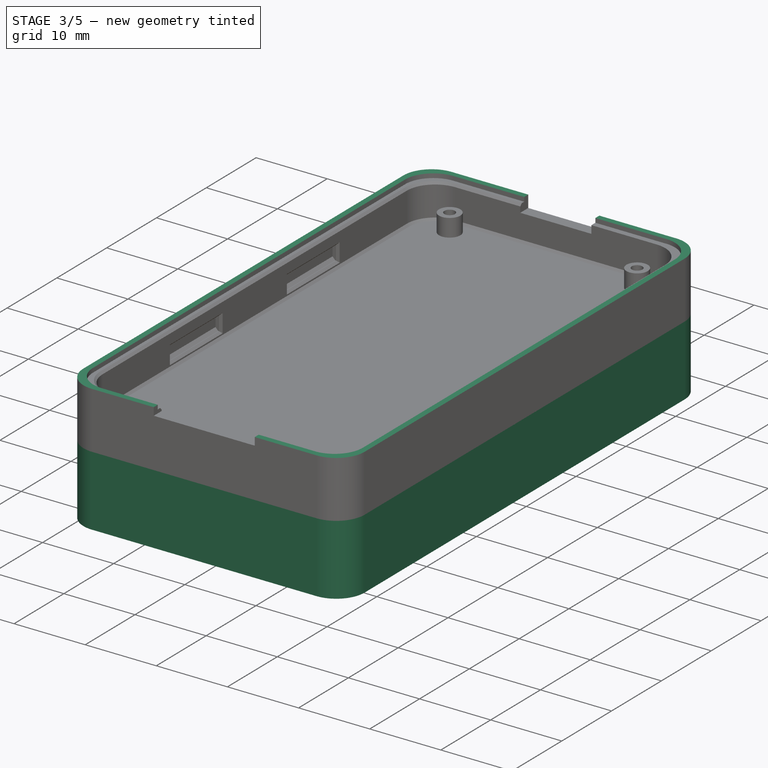
[diagram: stage 3 of 5 — iso view after this stage's code; geometry added in this stage tinted green]
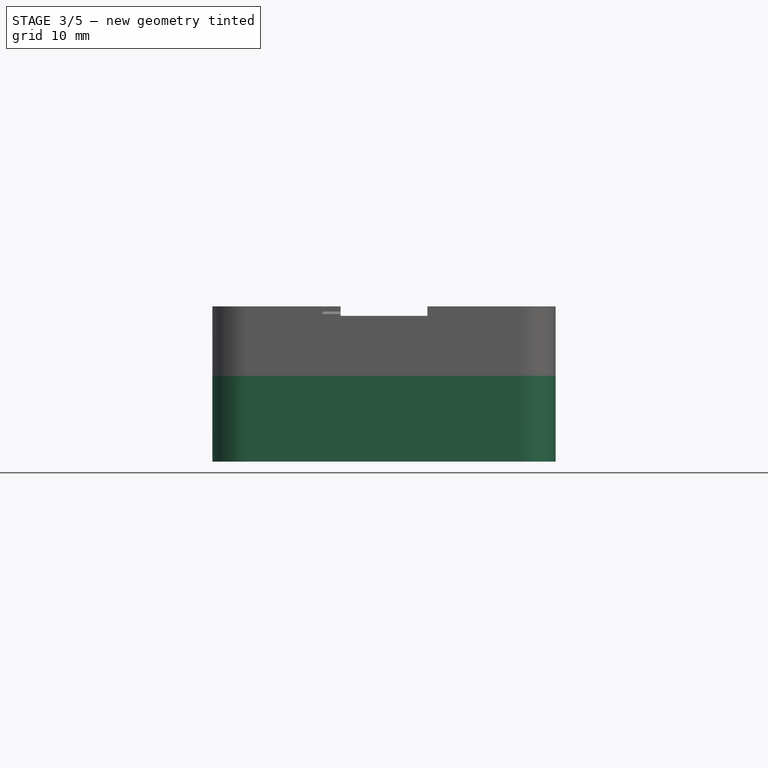
[diagram: stage 3 of 5 — front view after this stage's code; geometry added in this stage tinted green]
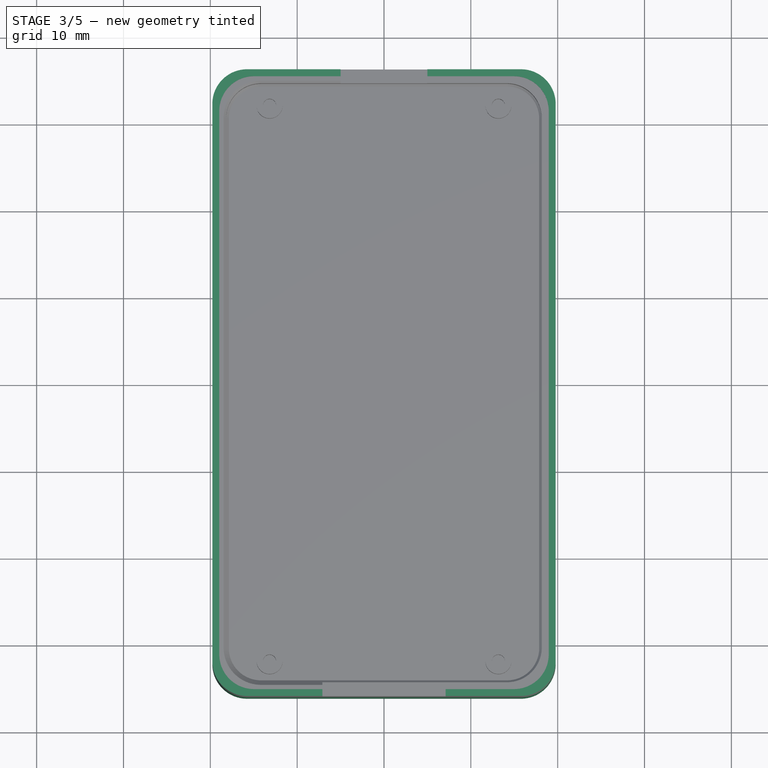
[diagram: stage 3 of 5 — top view after this stage's code; geometry added in this stage tinted green]
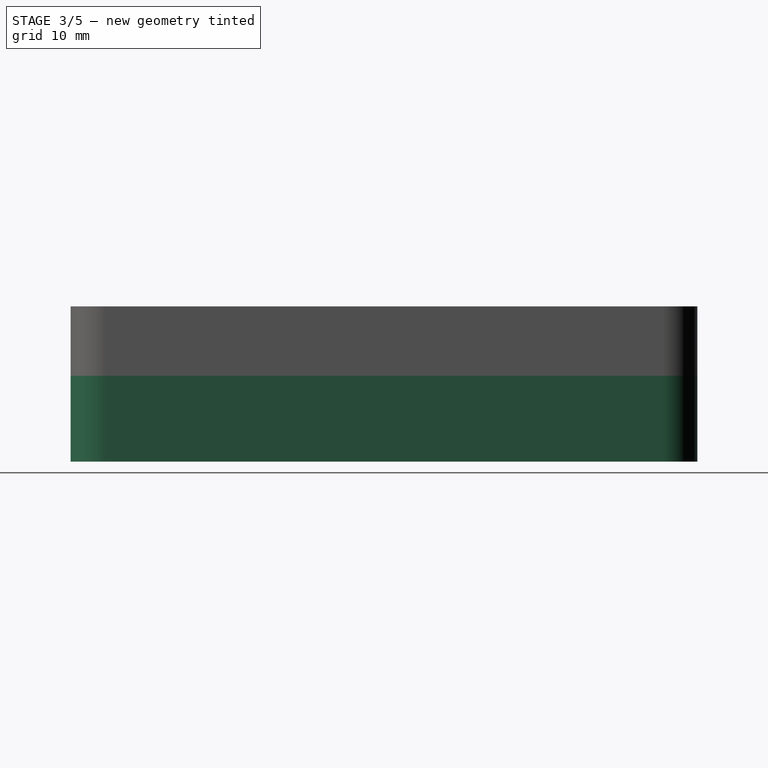
[diagram: stage 3 of 5 — right view after this stage's code; geometry added in this stage tinted green]
FEATURE [PartDesign::Chamfer] Chamfer
  Angle = 45
  Base = -> Pocket014 [Edge167,Edge171,Edge164,Edge161,Edge151,Edge155]
  BaseFeature = -> Pocket014
  ChamferType = 0
  FlipDirection = false
  Size = 0.4
  Size2 = 1
  SupportTransform = false
  Suppressed = false
  UseAllEdges = false
  expr: Size = Spreadsheet.CaseWallThickness / 2 / 2
FEATURE [PartDesign::Pocket] Pocket015
  BaseFeature = -> Chamfer
  Direction = (-1,0,0)
  Length = 0
  Length2 = 5
  Profile = -> Sketch010
  ReferenceAxis = -> Sketch010 [N_Axis]
  Suppressed = false
  Type = 3
  UpToFace = -> Chamfer [Face19]
FEATURE [Sketcher::SketchObject] Sketch016  label="TopBase"
  AttachmentSupport = -> [XY_Plane001]
  FullyConstrained = true
  MapMode = 5
  expr: Constraints[19] = Spreadsheet.PCBLength + Spreadsheet.PCBWallGap_Vert * 2 + Spreadsheet.CaseWallThickness * 2
  expr: Constraints[20] = (Spreadsheet.PCBLength + Spreadsheet.PCBWallGap_Vert * 2 + Spreadsheet.CaseWallThickness * 2) / 2
  expr: Constraints[21] = (Spreadsheet.PCBWidth + Spreadsheet.PCBWallGap_Hor * 2 + Spreadsheet.CaseWallThickness * 2) / 2
  expr: Constraints[22] = (Spreadsheet.PCBWidth + Spreadsheet.PCBWallGap_Hor * 2 + Spreadsheet.CaseWallThickness * 2) / 2 + Spreadsheet.AdditionalHubWidth
  expr: Constraints[23] = Spreadsheet.CaseCornerRadius
  sketch-geometry (10):
    g0: ArcOfCircle CenterX=-15.77 CenterY=32.095 CenterZ=0 NormalX=0 NormalY=0 NormalZ=1 AngleXU=0 Radius=4 StartAngle=1.5708 EndAngle=3.14159
    g1: LineSegment StartX=-15.77 StartY=36.095 StartZ=0 EndX=15.77 EndY=36.095 EndZ=0
    g2: ArcOfCircle CenterX=15.77 CenterY=32.095 CenterZ=0 NormalX=0 NormalY=0 NormalZ=1 AngleXU=0 Radius=4 StartAngle=2e-16 EndAngle=1.5708
    g3: LineSegment StartX=19.77 StartY=32.095 StartZ=0 EndX=19.77 EndY=-32.095 EndZ=0
    g4: ArcOfCircle CenterX=15.77 CenterY=-32.095 CenterZ=0 NormalX=0 NormalY=0 NormalZ=1 AngleXU=0 Radius=4 StartAngle=4.71239 EndAngle=6.28319
    g5: LineSegment StartX=15.77 StartY=-36.095 StartZ=0 EndX=-15.77 EndY=-36.095 EndZ=0
    g6: ArcOfCircle CenterX=-15.77 CenterY=-32.095 CenterZ=0 NormalX=0 NormalY=0 NormalZ=1 AngleXU=0 Radius=4 StartAngle=3.14159 EndAngle=4.71239
    g7: LineSegment StartX=-19.77 StartY=-32.095 StartZ=0 EndX=-19.77 EndY=32.095 EndZ=0
    g8: GeomPoint X=-19.77 Y=36.095 Z=0
    g9: GeomPoint X=19.77 Y=-36.095 Z=0
  constraints (24):
    c: Tangent(g0,g1) = 1.5708
    c: Tangent(g1,g2) = 1.5708
    c: Tangent(g2,g3) = 1.5708
    c: Tangent(g3,g4) = 1.5708
    c: Tangent(g4,g5) = 1.5708
    c: Tangent(g5,g6) = 1.5708
    c: Tangent(g6,g7) = 1.5708
    c: Tangent(g7,g0) = 1.5708
    c: Horizontal(g1)
    c: Horizontal(g5)
    c: Vertical(g3)
    c: Vertical(g7)
    c: Equal(g0,g2)
    c: Equal(g2,g4)
    c: Equal(g4,g6)
    c: PointOnObject(g8,g1)
    c: PointOnObject(g8,g7)
    c: PointOnObject(g9,g3)
    c: PointOnObject(g9,g5)
    c: DistanceY(g5,g0) = 72.19
    c: DistanceY(g-1,g0) = 36.095
    c: DistanceX(g0,g-1) = 19.77
    c: DistanceX(g-1,g2) = 19.77
    c: Radius(g4) = 4
FEATURE [PartDesign::Pad] Pad003
  Direction = (0,0,1)
  Length = 2.6
  Length2 = 10
  Profile = -> Sketch016
  ReferenceAxis = -> Sketch016 [N_Axis]
  Reversed = true
  Suppressed = false
  Type = 0
  expr: Length = Spreadsheet.CaseBottomThickness
FEATURE [Sketcher::SketchObject] Sketch018  label="TopWalls"
  AttachmentSupport = -> [Pad003]
  ExternalGeometry = -> [Pad003]
  FullyConstrained = true
  MapMode = 5
  Placement = pos=(0,0,-2.6) rot=(1,0,0;3.14159rad)
  expr: Constraints[36] = Spreadsheet.CaseWallThickness
  expr: Constraints[37] = Spreadsheet.CaseWallThickness
  expr: Constraints[38] = Spreadsheet.CaseWallThickness
  expr: Constraints[39] = Spreadsheet.CaseWallThickness
  sketch-geometry (20):
    g0: ArcOfCircle CenterX=-15.77 CenterY=32.095 CenterZ=0 NormalX=0 NormalY=0 NormalZ=1 AngleXU=0 Radius=4 StartAngle=1.5708 EndAngle=3.14159
    g1: LineSegment StartX=-15.77 StartY=36.095 StartZ=0 EndX=15.77 EndY=36.095 EndZ=0
    g2: ArcOfCircle CenterX=15.77 CenterY=32.095 CenterZ=0 NormalX=0 NormalY=0 NormalZ=1 AngleXU=0 Radius=4 StartAngle=-1.732e-13 EndAngle=1.5708
    g3: LineSegment StartX=19.77 StartY=32.095 StartZ=0 EndX=19.77 EndY=-32.095 EndZ=0
    g4: ArcOfCircle CenterX=15.77 CenterY=-32.095 CenterZ=0 NormalX=0 NormalY=0 NormalZ=1 AngleXU=0 Radius=4 StartAngle=4.71239 EndAngle=6.28319
    g5: LineSegment StartX=15.77 StartY=-36.095 StartZ=0 EndX=-15.77 EndY=-36.095 EndZ=0
    g6: ArcOfCircle CenterX=-15.77 CenterY=-32.095 CenterZ=0 NormalX=0 NormalY=0 NormalZ=1 AngleXU=0 Radius=4 StartAngle=3.14159 EndAngle=4.71239
    g7: LineSegment StartX=-19.77 StartY=-32.095 StartZ=0 EndX=-19.77 EndY=32.095 EndZ=0
    g8: GeomPoint X=-19.77 Y=36.095 Z=0
    g9: GeomPoint X=19.77 Y=-36.095 Z=0
    g10: ArcOfCircle CenterX=-14.17 CenterY=30.495 CenterZ=0 NormalX=0 NormalY=0 NormalZ=1 AngleXU=0 Radius=4 StartAngle=1.5708 EndAngle=3.14159
    g11: LineSegment StartX=-14.17 StartY=34.495 StartZ=0 EndX=14.17 EndY=34.495 EndZ=0
    g12: ArcOfCircle CenterX=14.17 CenterY=30.495 CenterZ=0 NormalX=0 NormalY=0 NormalZ=1 AngleXU=0 Radius=4 StartAngle=0 EndAngle=1.5708
    g13: LineSegment StartX=18.17 StartY=30.495 StartZ=0 EndX=18.17 EndY=-30.495 EndZ=0
    g14: ArcOfCircle CenterX=14.17 CenterY=-30.495 CenterZ=0 NormalX=0 NormalY=0 NormalZ=1 AngleXU=0 Radius=4 StartAngle=4.71239 EndAngle=6.28319
    g15: LineSegment StartX=14.17 StartY=-34.495 StartZ=0 EndX=-14.17 EndY=-34.495 EndZ=0
    g16: ArcOfCircle CenterX=-14.17 CenterY=-30.495 CenterZ=0 NormalX=0 NormalY=0 NormalZ=1 AngleXU=0 Radius=4 StartAngle=3.14159 EndAngle=4.71239
    g17: LineSegment StartX=-18.17 StartY=-30.495 StartZ=0 EndX=-18.17 EndY=30.495 EndZ=0
    g18: GeomPoint X=-18.17 Y=34.495 Z=0
    g19: GeomPoint X=18.17 Y=-34.495 Z=0
  constraints (44):
    c: Tangent(g0,g1) = 1.5708
    c: Tangent(g1,g2) = 1.5708
    c: Tangent(g2,g3) = 1.5708
    c: Tangent(g3,g4) = 1.5708
    c: Tangent(g4,g5) = 1.5708
    c: Tangent(g5,g6) = 1.5708
    c: Tangent(g6,g7) = 1.5708
    c: Tangent(g7,g0) = 1.5708
    c: Horizontal(g5)
    c: Vertical(g3)
    c: Equal(g2,g4)
    c: Equal(g4,g6)
    c: PointOnObject(g8,g1)
    c: PointOnObject(g8,g7)
    c: PointOnObject(g9,g3)
    c: PointOnObject(g9,g5)
    c: Tangent(g10,g11) = 1.5708
    c: Tangent(g11,g12) = 1.5708
    c: Tangent(g12,g13) = 1.5708
    c: Tangent(g13,g14) = 1.5708
    c: Tangent(g14,g15) = 1.5708
    c: Tangent(g15,g16) = 1.5708
    c: Tangent(g16,g17) = 1.5708
    c: Tangent(g17,g10) = 1.5708
    c: Horizontal(g11)
    c: Horizontal(g15)
    c: Vertical(g13)
    c: Vertical(g17)
    c: Equal(g10,g12)
    c: Equal(g12,g14)
    c: Equal(g14,g16)
    c: PointOnObject(g18,g11)
    c: PointOnObject(g18,g17)
    c: PointOnObject(g19,g13)
    c: PointOnObject(g19,g15)
    c: Equal(g0,g10)
    c: DistanceY(g10,g0) = 1.6
    c: DistanceY(g5,g15) = 1.6
    c: DistanceX(g0,g10) = 1.6
    c: DistanceX(g12,g2) = 1.6
    c: Coincident(g0,g-3)
    c: Coincident(g0,g-4)
    c: Coincident(g2,g-5)
    c: Coincident(g6,g-4)
FEATURE [PartDesign::Pad] Pad004
  BaseFeature = -> Pad003
  Direction = (0,0,-1)
  Length = 7.295
  Length2 = 10
  Profile = -> Sketch018
  ReferenceAxis = -> Sketch018 [N_Axis]
  Suppressed = false
  Type = 0
  expr: Length = Spreadsheet.TopWallHeight
FEATURE [PartDesign::Chamfer] Chamfer003
  Angle = 45
  Base = -> Pocket015 [Face4]
  BaseFeature = -> Pocket015
  ChamferType = 0
  FlipDirection = false
  Refine = true
  Size = 0.3
  Size2 = 1
  SupportTransform = false
  Suppressed = false
  UseAllEdges = false
  expr: Size = Spreadsheet.CaseChamfer
FEATURE [PartDesign::Body] Body001  label="Top"
  Group = -> [Sketch016,Pad003,Sketch018,Pad004,Sketch019,Pad005,Sketch020,Pocket016,Sketch021,Pocket017,Sketch022,Pad006,Sketch023,Pocket018,Sketch025,Pad007,Chamfer001,Sketch024,Pocket019,Sketch026,Pad008,Chamfer004]
  Origin = -> Origin001
  Placement = pos=(0,0,18.31) rot=(0,0,1;0rad)
  Tip = -> Chamfer004
FEATURE [Sketcher::SketchObject] Sketch027  label="ShadowLine"
  AttachmentSupport = -> [Pocket014]
  FullyConstrained = false
  MapMode = 5
  Placement = pos=(0,0,8.395) rot=(0,0,1;0rad)
  sketch-geometry (5):
    g0: LineSegment StartX=-30 StartY=-50 StartZ=0 EndX=30 EndY=-50 EndZ=0
    g1: LineSegment StartX=30 StartY=-50 StartZ=0 EndX=30 EndY=50 EndZ=0
    g2: LineSegment StartX=30 StartY=50 StartZ=0 EndX=-30 EndY=50 EndZ=0
    g3: LineSegment StartX=-30 StartY=50 StartZ=0 EndX=-30 EndY=-50 EndZ=0
    g4: GeomPoint X=0 Y=0 Z=0
  constraints (10):
    c: Coincident(g0,g1)
    c: Coincident(g1,g2)
    c: Coincident(g2,g3)
    c: Coincident(g3,g0)
    c: Horizontal(g0)
    c: Horizontal(g2)
    c: Vertical(g1)
    c: Vertical(g3)
    c: Symmetric(g2,g0,g4)
    c: Coincident(g4,g-1)
FEATURE [PartDesign::Pocket] Pocket020
  BaseFeature = -> Chamfer003
  Direction = (0,0,-1)
  Length = 0.4
  Length2 = 5
  Profile = -> Sketch027
  ReferenceAxis = -> Sketch027 [N_Axis]
  Refine = true
  Suppressed = false
  Type = 0
  expr: Length = Spreadsheet.ShadowLine
FEATURE [PartDesign::Body] Body  label="BottomCase"
  Group = -> [Sketch,Pad,Sketch001,Pocket,Sketch002,Pad001,Sketch003,Pocket001,Sketch004,Pad002,Sketch011,Pocket009,Sketch012,Pocket010,Sketch013,Pocket011,Sketch014,Pocket013,Sketch015,Pocket014,Chamfer,Sketch010,Pocket015,Chamfer003,Sketch027,Pocket020]
  Origin = -> Origin
  Tip = -> Pocket020
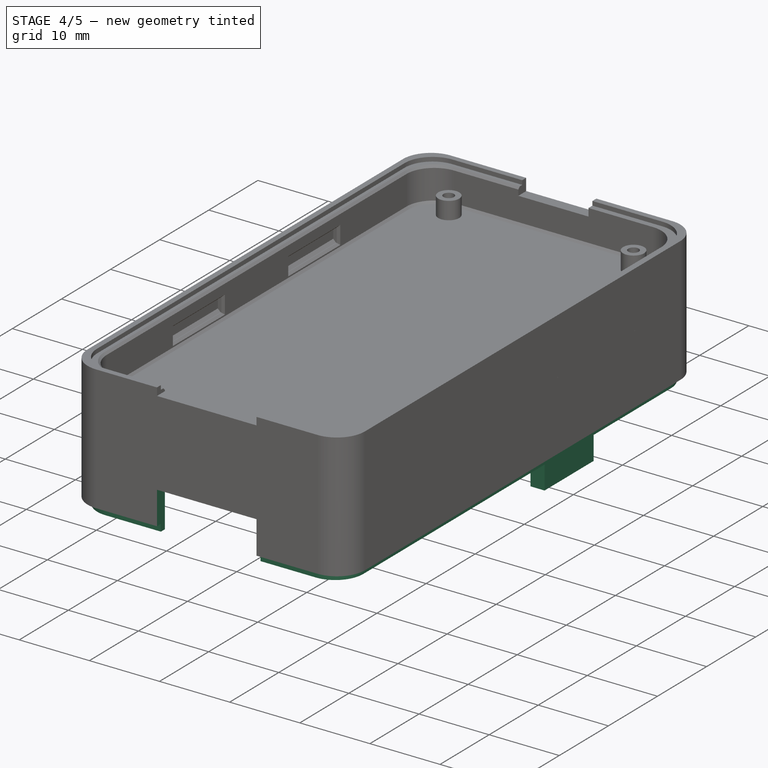
[diagram: stage 4 of 5 — iso view after this stage's code; geometry added in this stage tinted green]
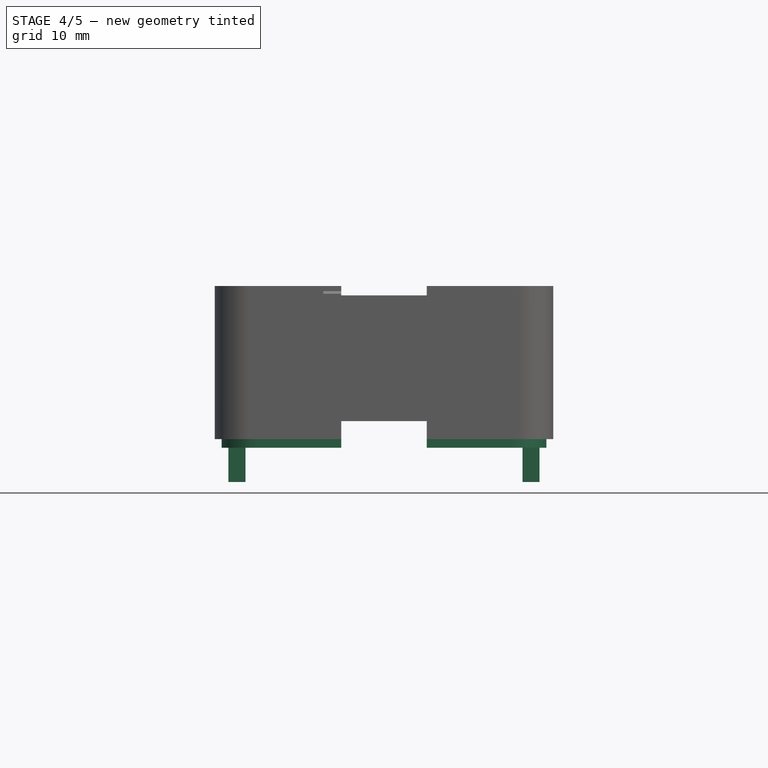
[diagram: stage 4 of 5 — front view after this stage's code; geometry added in this stage tinted green]
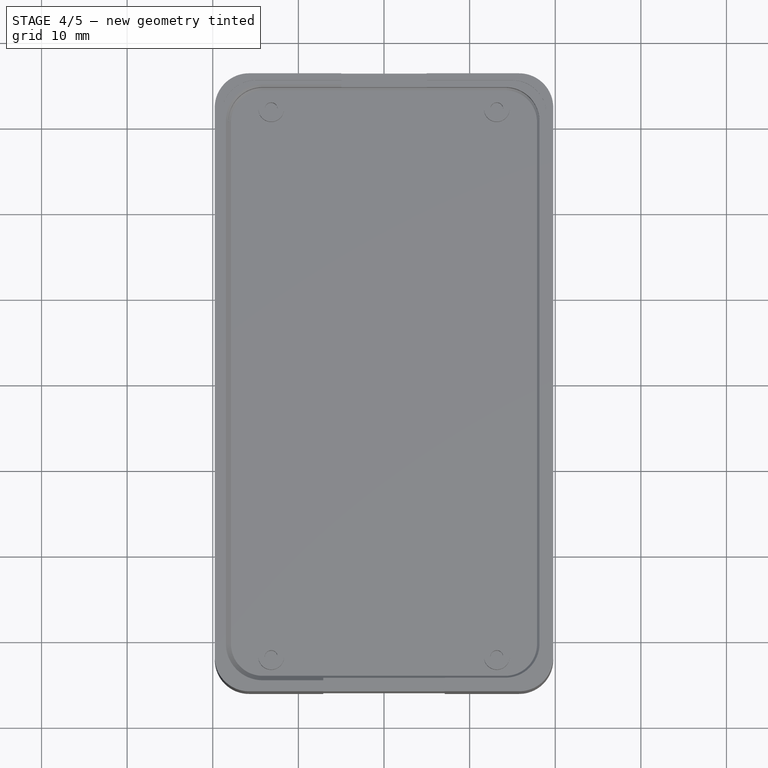
[diagram: stage 4 of 5 — top view after this stage's code; geometry added in this stage tinted green]
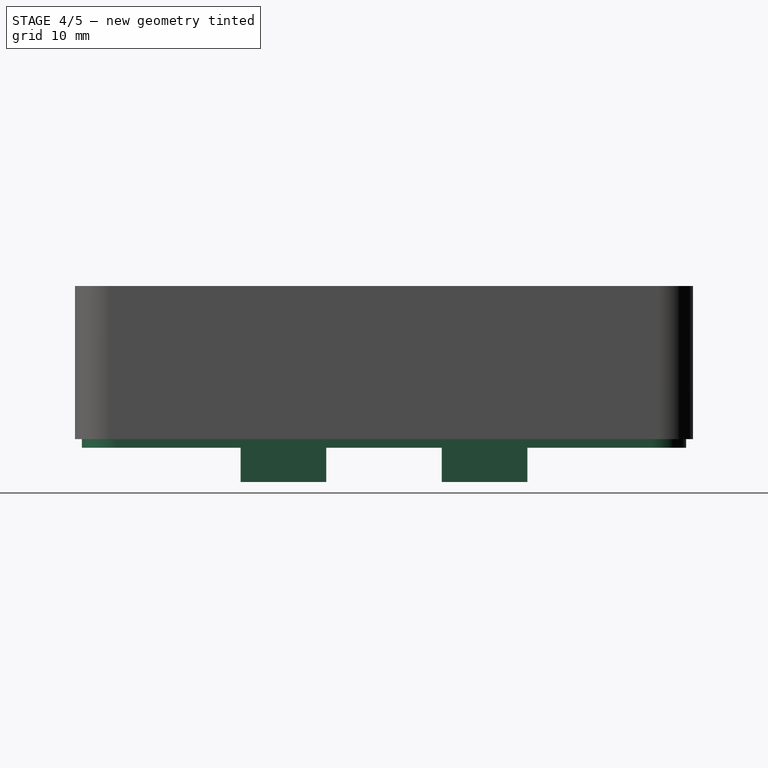
[diagram: stage 4 of 5 — right view after this stage's code; geometry added in this stage tinted green]
FEATURE [Sketcher::SketchObject] Sketch019  label="TopSnapRim"
  AttachmentSupport = -> [Pad004]
  ExternalGeometry = -> [Pad004]
  FullyConstrained = true
  MapMode = 5
  Placement = pos=(0,0,-9.895) rot=(1,0,0;3.14159rad)
  expr: Constraints[36] = Spreadsheet.CaseWallThickness / 2
  expr: Constraints[37] = Spreadsheet.CaseWallThickness / 2
  expr: Constraints[38] = Spreadsheet.CaseWallThickness / 2
  expr: Constraints[39] = Spreadsheet.CaseWallThickness / 2
  sketch-geometry (20):
    g0: ArcOfCircle CenterX=-14.97 CenterY=31.295 CenterZ=0 NormalX=0 NormalY=0 NormalZ=1 AngleXU=0 Radius=4 StartAngle=1.5708 EndAngle=3.14159
    g1: LineSegment StartX=-14.97 StartY=35.295 StartZ=0 EndX=14.97 EndY=35.295 EndZ=0
    g2: ArcOfCircle CenterX=14.97 CenterY=31.295 CenterZ=0 NormalX=0 NormalY=0 NormalZ=1 AngleXU=0 Radius=4 StartAngle=1e-16 EndAngle=1.5708
    g3: LineSegment StartX=18.97 StartY=31.295 StartZ=0 EndX=18.97 EndY=-31.295 EndZ=0
    g4: ArcOfCircle CenterX=14.97 CenterY=-31.295 CenterZ=0 NormalX=0 NormalY=0 NormalZ=1 AngleXU=0 Radius=4 StartAngle=4.71239 EndAngle=6.28319
    g5: LineSegment StartX=14.97 StartY=-35.295 StartZ=0 EndX=-14.97 EndY=-35.295 EndZ=0
    g6: ArcOfCircle CenterX=-14.97 CenterY=-31.295 CenterZ=0 NormalX=0 NormalY=0 NormalZ=1 AngleXU=0 Radius=4 StartAngle=3.14159 EndAngle=4.71239
    g7: LineSegment StartX=-18.97 StartY=-31.295 StartZ=0 EndX=-18.97 EndY=31.295 EndZ=0
    g8: GeomPoint X=-18.97 Y=35.295 Z=0
    g9: GeomPoint X=18.97 Y=-35.295 Z=0
    g10: ArcOfCircle CenterX=-14.17 CenterY=30.495 CenterZ=0 NormalX=0 NormalY=0 NormalZ=1 AngleXU=0 Radius=4 StartAngle=1.5708 EndAngle=3.14159
    g11: LineSegment StartX=-14.17 StartY=34.495 StartZ=0 EndX=14.17 EndY=34.495 EndZ=0
    g12: ArcOfCircle CenterX=14.17 CenterY=30.495 CenterZ=0 NormalX=0 NormalY=0 NormalZ=1 AngleXU=0 Radius=4 StartAngle=3e-16 EndAngle=1.5708
    g13: LineSegment StartX=18.17 StartY=30.495 StartZ=0 EndX=18.17 EndY=-30.495 EndZ=0
    g14: ArcOfCircle CenterX=14.17 CenterY=-30.495 CenterZ=0 NormalX=0 NormalY=0 NormalZ=1 AngleXU=0 Radius=4 StartAngle=4.71239 EndAngle=6.28319
    g15: LineSegment StartX=14.17 StartY=-34.495 StartZ=0 EndX=-14.17 EndY=-34.495 EndZ=0
    g16: ArcOfCircle CenterX=-14.17 CenterY=-30.495 CenterZ=0 NormalX=0 NormalY=0 NormalZ=1 AngleXU=0 Radius=4 StartAngle=3.14159 EndAngle=4.71239
    g17: LineSegment StartX=-18.17 StartY=-30.495 StartZ=0 EndX=-18.17 EndY=30.495 EndZ=0
    g18: GeomPoint X=-18.17 Y=34.495 Z=0
    g19: GeomPoint X=18.17 Y=-34.495 Z=0
  constraints (44):
    c: Tangent(g0,g1) = 1.5708
    c: Tangent(g1,g2) = 1.5708
    c: Tangent(g2,g3) = 1.5708
    c: Tangent(g3,g4) = 1.5708
    c: Tangent(g4,g5) = 1.5708
    c: Tangent(g5,g6) = 1.5708
    c: Tangent(g6,g7) = 1.5708
    c: Tangent(g7,g0) = 1.5708
    c: Horizontal(g1)
    c: Horizontal(g5)
    c: Vertical(g3)
    c: Vertical(g7)
    c: Equal(g0,g2)
    c: Equal(g2,g4)
    c: Equal(g4,g6)
    c: PointOnObject(g8,g1)
    c: PointOnObject(g8,g7)
    c: PointOnObject(g9,g3)
    c: PointOnObject(g9,g5)
    c: Tangent(g10,g11) = 1.5708
    c: Tangent(g11,g12) = 1.5708
    c: Tangent(g12,g13) = 1.5708
    c: Tangent(g13,g14) = 1.5708
    c: Tangent(g14,g15) = 1.5708
    c: Tangent(g15,g16) = 1.5708
    c: Tangent(g16,g17) = 1.5708
    c: Tangent(g17,g10) = 1.5708
    c: Horizontal(g15)
    c: Vertical(g13)
    c: Equal(g12,g14)
    c: Equal(g14,g16)
    c: PointOnObject(g18,g11)
    c: PointOnObject(g18,g17)
    c: PointOnObject(g19,g13)
    c: PointOnObject(g19,g15)
    c: Equal(g14,g4)
    c: DistanceY(g11,g1) = 0.8
    c: DistanceY(g4,g14) = 0.8
    c: DistanceX(g0,g10) = 0.8
    c: DistanceX(g12,g2) = 0.8
    c: Coincident(g10,g-3)
    c: Coincident(g10,g-4)
    c: Coincident(g12,g-5)
    c: Coincident(g16,g-4)
FEATURE [PartDesign::Pad] Pad005
  BaseFeature = -> Pad004
  Direction = (0,0,-1)
  Length = 1
  Length2 = 10
  Profile = -> Sketch019
  ReferenceAxis = -> Sketch019 [N_Axis]
  Suppressed = false
  Type = 0
  expr: Length = Spreadsheet.Snap_Rim_Height
FEATURE [Sketcher::SketchObject] Sketch020  label="TopUSB-C"
  AttachmentSupport = -> [Pad005]
  ExternalGeometry = -> [Pad005]
  FullyConstrained = true
  MapMode = 5
  Placement = pos=(0,36.095,0) rot=(0,0.707107,0.707107;3.14159rad)
  expr: Constraints[10] = Spreadsheet.USB_C_Width + 2 * Spreadsheet.USB_C_Gap
  expr: Constraints[11] = Spreadsheet.USB_C_Height + 2 * Spreadsheet.USB_C_Gap
  expr: Constraints[12] = Spreadsheet.USB_C_VertOffset
  sketch-geometry (5):
    g0: LineSegment StartX=-5 StartY=-12 StartZ=0 EndX=-5 EndY=-7.79 EndZ=0
    g1: LineSegment StartX=-5 StartY=-7.79 StartZ=0 EndX=5 EndY=-7.79 EndZ=0
    g2: LineSegment StartX=5 StartY=-7.79 StartZ=0 EndX=5 EndY=-12 EndZ=0
    g3: LineSegment StartX=5 StartY=-12 StartZ=0 EndX=-5 EndY=-12 EndZ=0
    g4: GeomPoint X=0 Y=-9.895 Z=0
  constraints (13):
    c: Coincident(g0,g1)
    c: Coincident(g1,g2)
    c: Coincident(g2,g3)
    c: Coincident(g3,g0)
    c: Horizontal(g1)
    c: Horizontal(g3)
    c: Vertical(g0)
    c: Vertical(g2)
    c: Symmetric(g1,g0,g4)
    c: PointOnObject(g4,g-2)
    c: DistanceX(g1,g1) = 10
    c: DistanceY(g0,g0) = 4.21
    c: DistanceY(g-3,g4) = 0
FEATURE [PartDesign::Pocket] Pocket016
  BaseFeature = -> Pad005
  Direction = (0,-1,2e-16)
  Length = 0
  Length2 = 5
  Profile = -> Sketch020
  ReferenceAxis = -> Sketch020 [N_Axis]
  Suppressed = false
  Type = 3
  UpToFace = -> Pad005 [Face39]
FEATURE [Sketcher::SketchObject] Sketch021  label="TopUSB-A"
  AttachmentSupport = -> [Pocket016]
  ExternalGeometry = -> [Pocket016]
  FullyConstrained = true
  MapMode = 5
  Placement = pos=(3.8544e-12,-36.095,0) rot=(1,0,0;1.5708rad)
  expr: Constraints[10] = Spreadsheet.USB_A_Width + 2 * Spreadsheet.USB_A_Gap
  expr: Constraints[11] = Spreadsheet.USB_A_Height + 2 * Spreadsheet.USB_A_Gap
  expr: Constraints[12] = Spreadsheet.AddPostHeight + Spreadsheet.USB_A_VertOffset
  sketch-geometry (5):
    g0: LineSegment StartX=-7.1 StartY=-12.39 StartZ=0 EndX=-7.1 EndY=-5.19 EndZ=0
    g1: LineSegment StartX=-7.1 StartY=-5.19 StartZ=0 EndX=7.1 EndY=-5.19 EndZ=0
    g2: LineSegment StartX=7.1 StartY=-5.19 StartZ=0 EndX=7.1 EndY=-12.39 EndZ=0
    g3: LineSegment StartX=7.1 StartY=-12.39 StartZ=0 EndX=-7.1 EndY=-12.39 EndZ=0
    g4: GeomPoint X=0 Y=-8.79 Z=0
  constraints (13):
    c: Coincident(g0,g1)
    c: Coincident(g1,g2)
    c: Coincident(g2,g3)
    c: Coincident(g3,g0)
    c: Horizontal(g1)
    c: Horizontal(g3)
    c: Vertical(g0)
    c: Vertical(g2)
    c: Symmetric(g1,g0,g4)
    c: PointOnObject(g4,g-2)
    c: DistanceX(g1,g1) = 14.2
    c: DistanceY(g2,g2) = 7.2
    c: DistanceY(g-3,g4) = 2.105
FEATURE [PartDesign::Pocket] Pocket017
  BaseFeature = -> Pocket016
  Direction = (-1.068e-13,1,-2e-16)
  Length = 5
  Length2 = 5
  Profile = -> Sketch021
  ReferenceAxis = -> Sketch021 [N_Axis]
  Suppressed = false
  Type = 0
FEATURE [Sketcher::SketchObject] Sketch022  label="TopSnapPosts"
  AttachmentSupport = -> [Pocket017]
  ExternalGeometry = -> [Pocket017]
  FullyConstrained = true
  MapMode = 5
  Placement = pos=(0,0,-2.6) rot=(1,0,0;3.14159rad)
  expr: Constraints[24] = Spreadsheet.Snap_Hor_Space / 2
  expr: Constraints[25] = Spreadsheet.Snap_Width
  expr: Constraints[34] = Spreadsheet.Snap_Depth
  sketch-geometry (15):
    g0: LineSegment StartX=-18.17 StartY=6.75 StartZ=0 EndX=-18.17 EndY=16.75 EndZ=0
    g1: LineSegment StartX=-18.17 StartY=16.75 StartZ=0 EndX=-16.17 EndY=16.75 EndZ=0
    g2: LineSegment StartX=-16.17 StartY=16.75 StartZ=0 EndX=-16.17 EndY=6.75 EndZ=0
    g3: LineSegment StartX=-16.17 StartY=6.75 StartZ=0 EndX=-18.17 EndY=6.75 EndZ=0
    g4: GeomPoint X=-17.17 Y=11.75 Z=0
    g5: LineSegment StartX=-18.17 StartY=-16.75 StartZ=0 EndX=-18.17 EndY=-6.75 EndZ=0
    g6: LineSegment StartX=-18.17 StartY=-6.75 StartZ=0 EndX=-16.17 EndY=-6.75 EndZ=0
    g7: LineSegment StartX=-16.17 StartY=-6.75 StartZ=0 EndX=-16.17 EndY=-16.75 EndZ=0
    g8: LineSegment StartX=-16.17 StartY=-16.75 StartZ=0 EndX=-18.17 EndY=-16.75 EndZ=0
    g9: GeomPoint X=-17.17 Y=-11.75 Z=0
    g10: LineSegment StartX=16.17 StartY=-16.75 StartZ=0 EndX=16.17 EndY=-6.75 EndZ=0
    g11: LineSegment StartX=16.17 StartY=-6.75 StartZ=0 EndX=18.17 EndY=-6.75 EndZ=0
    g12: LineSegment StartX=18.17 StartY=-6.75 StartZ=0 EndX=18.17 EndY=-16.75 EndZ=0
    g13: LineSegment StartX=18.17 StartY=-16.75 StartZ=0 EndX=16.17 EndY=-16.75 EndZ=0
    g14: GeomPoint X=17.17 Y=-11.75 Z=0
  constraints (35):
    c: Coincident(g0,g1)
    c: Coincident(g1,g2)
    c: Coincident(g2,g3)
    c: Coincident(g3,g0)
    c: Horizontal(g1)
    c: Horizontal(g3)
    c: Vertical(g2)
    c: Symmetric(g1,g0,g4)
    c: Coincident(g5,g6)
    c: Coincident(g6,g7)
    c: Coincident(g7,g8)
    c: Coincident(g8,g5)
    c: Horizontal(g6)
    c: Horizontal(g8)
    c: Vertical(g7)
    c: Symmetric(g6,g5,g9)
    c: Coincident(g10,g11)
    c: Coincident(g11,g12)
    c: Coincident(g12,g13)
    c: Coincident(g13,g10)
    c: Horizontal(g11)
    c: Horizontal(g13)
    c: Vertical(g10)
    c: Symmetric(g11,g10,g14)
    c: DistanceY(g-1,g4) = 11.75
    c: DistanceY(g0,g0) = 10
    c: Equal(g6,g11)
    c: Tangent(g0,g-3)
    c: Tangent(g-3,g5)
    c: Tangent(g12,g-4)
    c: Equal(g2,g7)
    c: Equal(g7,g10)
    c: Horizontal(g14,g9)
    c: Symmetric(g4,g9,g-1)
    c: DistanceX(g6,g6) = 2
FEATURE [PartDesign::Pad] Pad006
  BaseFeature = -> Pocket017
  Direction = (0,0,-1)
  Length = 12.295
  Length2 = 10
  Profile = -> Sketch022
  ReferenceAxis = -> Sketch022 [N_Axis]
  Suppressed = false
  Type = 0
  expr: Length = Spreadsheet.TopWallHeight + Spreadsheet.Snap_Height
FEATURE [Sketcher::SketchObject] Sketch023  label="USB-A-Hub"
  AttachmentSupport = -> [Pad006]
  ExternalGeometry = -> [Pad006]
  FullyConstrained = true
  MapMode = 5
  Placement = pos=(19.77,0,0) rot=(0.57735,0.57735,0.57735;2.0944rad)
  expr: Constraints[18] = Spreadsheet.USB_A_Width + 2 * Spreadsheet.USB_A_Gap
  expr: Constraints[20] = Spreadsheet.USB_A_Hub_Spacing
  expr: Constraints[23] = Spreadsheet.USB_A_Hub_Hor_Offset
  expr: Constraints[24] = Spreadsheet.USB_A_Hub_Ver_Offset
  expr: Constraints[25] = Spreadsheet.USB_A_Height + 2 * Spreadsheet.USB_A_Gap
  sketch-geometry (10):
    g0: LineSegment StartX=-28.195 StartY=16.505 StartZ=0 EndX=-28.195 EndY=23.705 EndZ=0
    g1: LineSegment StartX=-28.195 StartY=23.705 StartZ=0 EndX=-13.995 EndY=23.705 EndZ=0
    g2: LineSegment StartX=-13.995 StartY=23.705 StartZ=0 EndX=-13.995 EndY=16.505 EndZ=0
    g3: LineSegment StartX=-13.995 StartY=16.505 StartZ=0 EndX=-28.195 EndY=16.505 EndZ=0
    g4: GeomPoint X=-21.095 Y=20.105 Z=0
    g5: LineSegment StartX=-9.195 StartY=16.505 StartZ=0 EndX=-9.195 EndY=23.705 EndZ=0
    g6: LineSegment StartX=-9.195 StartY=23.705 StartZ=0 EndX=5.005 EndY=23.705 EndZ=0
    g7: LineSegment StartX=5.005 StartY=23.705 StartZ=0 EndX=5.005 EndY=16.505 EndZ=0
    g8: LineSegment StartX=5.005 StartY=16.505 StartZ=0 EndX=-9.195 EndY=16.505 EndZ=0
    g9: GeomPoint X=-2.095 Y=20.105 Z=0
  constraints (26):
    c: Coincident(g0,g1)
    c: Coincident(g1,g2)
    c: Coincident(g2,g3)
    c: Coincident(g3,g0)
    c: Horizontal(g1)
    c: Horizontal(g3)
    c: Vertical(g0)
    c: Vertical(g2)
    c: Symmetric(g1,g0,g4)
    c: Coincident(g5,g6)
    c: Coincident(g6,g7)
    c: Coincident(g7,g8)
    c: Coincident(g8,g5)
    c: Horizontal(g6)
    c: Horizontal(g8)
    c: Vertical(g5)
    c: Vertical(g7)
    c: Symmetric(g6,g5,g9)
    c: DistanceX(g1,g1) = 14.2
    c: Equal(g1,g6)
    c: DistanceX(g4,g9) = 19
    c: Equal(g2,g5)
    c: Horizontal(g9,g4)
    c: DistanceX(g-3,g4) = 15
    c: DistanceY(g-3,g4) = 30
    c: DistanceY(g2,g2) = 7.2
FEATURE [PartDesign::Pocket] Pocket018
  BaseFeature = -> Pad006
  Direction = (-1,0,0)
  Length = 0
  Length2 = 5
  Profile = -> Sketch023
  ReferenceAxis = -> Sketch023 [N_Axis]
  Suppressed = false
  Type = 3
  UpToFace = -> Pad006 [Face76]
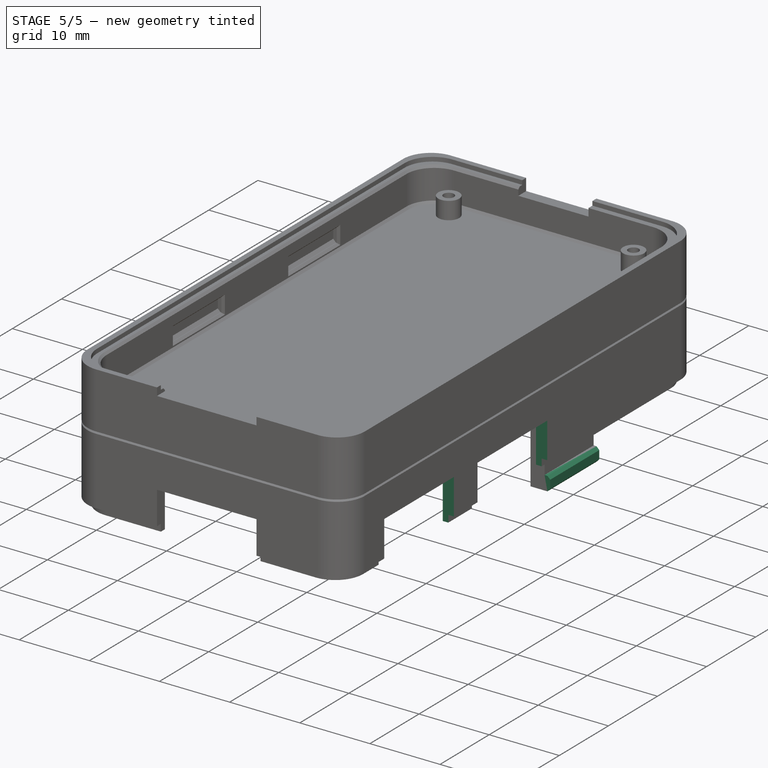
[diagram: stage 5 of 5 — iso view after this stage's code; geometry added in this stage tinted green]
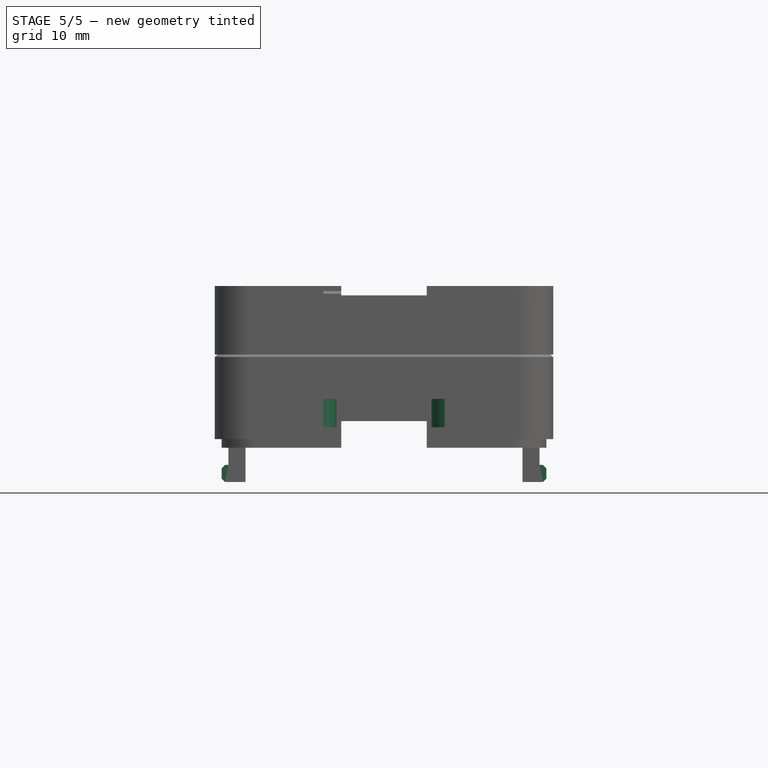
[diagram: stage 5 of 5 — front view after this stage's code; geometry added in this stage tinted green]
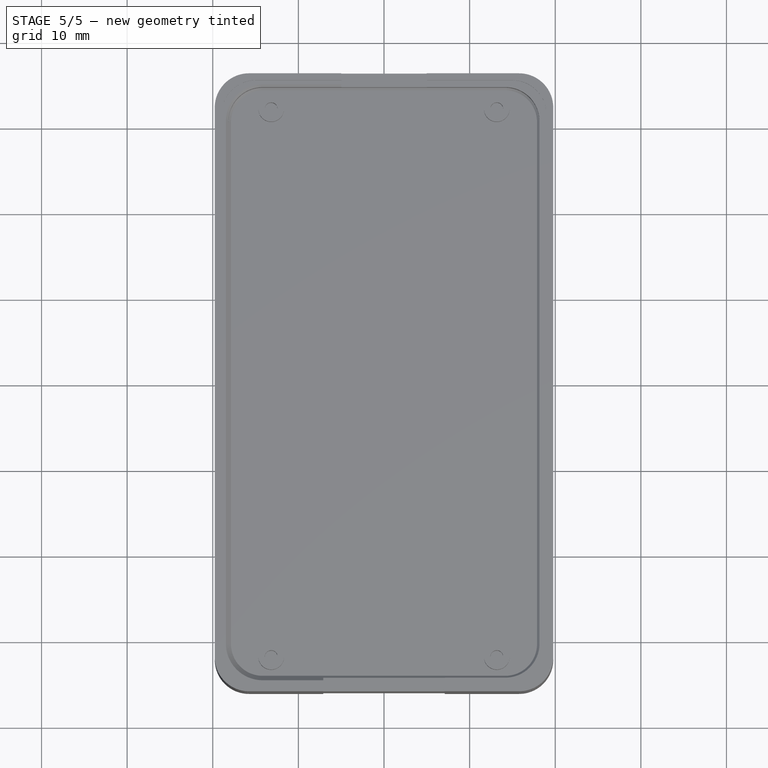
[diagram: stage 5 of 5 — top view after this stage's code; geometry added in this stage tinted green]
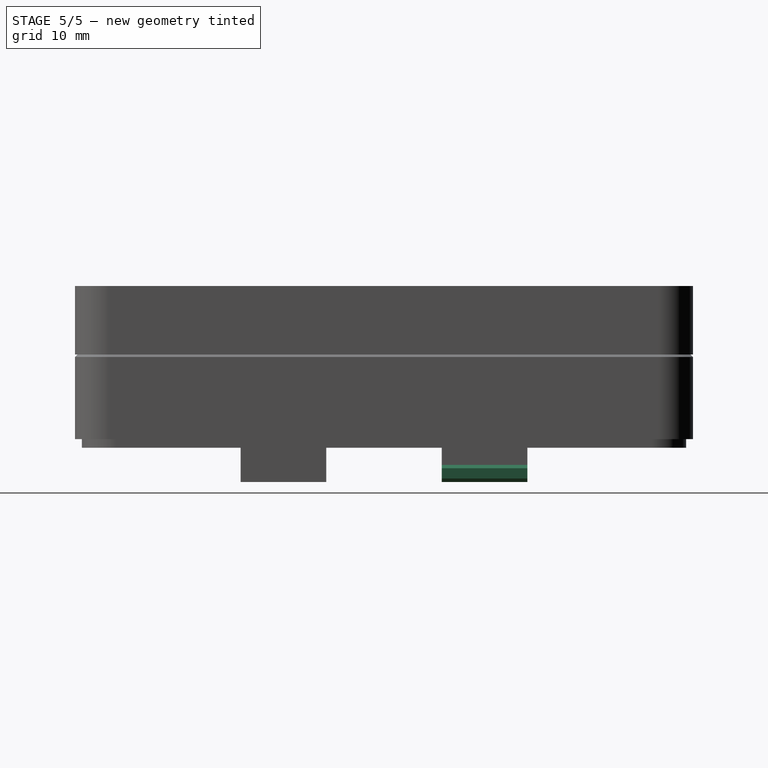
[diagram: stage 5 of 5 — right view after this stage's code; geometry added in this stage tinted green]
FEATURE [Sketcher::SketchObject] Sketch024  label="Button Holes"
  AttachmentSupport = -> [Pocket018]
  ExternalGeometry = -> [Pocket018]
  FullyConstrained = true
  MapMode = 2
  expr: Constraints[12] = Spreadsheet.BootResetDiameter
  expr: Constraints[13] = Spreadsheet.BootResetFromEdge
  expr: Constraints[15] = Spreadsheet.TactSwitchVertSpacing
  expr: Constraints[16] = Spreadsheet.TactSwitchVertSpacing
  expr: Constraints[17] = Spreadsheet.TactSwitchFromBottomEdge + Spreadsheet.PCBWallGap_Vert + Spreadsheet.CaseWallThickness
  expr: Constraints[18] = Spreadsheet.TactSwitchHoriSpacing
  expr: Constraints[20] = Spreadsheet.TactSwitchDiameter + 1
  expr: Constraints[21] = Spreadsheet.BootResetHorSpacing
  sketch-geometry (8):
    g0: Circle CenterX=-8 CenterY=28.095 CenterZ=0 NormalX=0 NormalY=0 NormalZ=1 AngleXU=0 Radius=0.85
    g1: Circle CenterX=8 CenterY=28.095 CenterZ=0 NormalX=0 NormalY=0 NormalZ=1 AngleXU=0 Radius=0.85
    g2: Circle CenterX=5.5 CenterY=2.355 CenterZ=0 NormalX=0 NormalY=0 NormalZ=1 AngleXU=0 Radius=2
    g3: Circle CenterX=5.5 CenterY=-6.17 CenterZ=0 NormalX=0 NormalY=0 NormalZ=1 AngleXU=0 Radius=2
    g4: Circle CenterX=5.5 CenterY=-14.695 CenterZ=0 NormalX=0 NormalY=0 NormalZ=1 AngleXU=0 Radius=2
    g5: Circle CenterX=-5.5 CenterY=-14.695 CenterZ=0 NormalX=0 NormalY=0 NormalZ=1 AngleXU=0 Radius=2
    g6: Circle CenterX=-5.5 CenterY=-6.17 CenterZ=0 NormalX=0 NormalY=0 NormalZ=1 AngleXU=0 Radius=2
    g7: Circle CenterX=-5.5 CenterY=2.355 CenterZ=0 NormalX=0 NormalY=0 NormalZ=1 AngleXU=0 Radius=2
  constraints (22):
    c: Vertical(g7,g6)
    c: Vertical(g6,g5)
    c: Vertical(g4,g3)
    c: Vertical(g3,g2)
    c: Horizontal(g6,g3)
    c: Horizontal(g5,g4)
    c: Equal(g7,g2)
    c: Equal(g2,g3)
    c: Equal(g3,g6)
    c: Equal(g6,g5)
    c: Equal(g4,g3)
    c: Equal(g1,g0)
    c: Diameter(g1) = 1.7
    c: DistanceY(g0,g-3) = 8
    c: Symmetric(g0,g1,g-2)
    c: DistanceY(g6,g7) = 8.525
    c: DistanceY(g5,g6) = 8.525
    c: DistanceY(g-5,g5) = 21.4
    c: DistanceX(g7,g2) = 11
    c: Symmetric(g7,g2,g-2)
    c: Diameter(g4) = 4
    c: DistanceX(g0,g1) = 16
FEATURE [Sketcher::SketchObject] Sketch025  label="SnapTabs"
  AttachmentSupport = -> [Pocket018]
  ExternalGeometry = -> [Pocket018]
  FullyConstrained = false
  MapMode = 5
  Placement = pos=(0,0,-14.895) rot=(1,0,0;3.14159rad)
  expr: Constraints[23] = Spreadsheet.Snap_Depth + Spreadsheet.CaseWallThickness / 2
  sketch-geometry (14):
    g0: LineSegment StartX=-27.4878 StartY=5.85266 StartZ=0 EndX=-27.4878 EndY=15.8527 EndZ=0
    g1: LineSegment StartX=-27.4878 StartY=15.8527 StartZ=0 EndX=-24.6878 EndY=15.8527 EndZ=0
    g2: LineSegment StartX=-24.6878 StartY=15.8527 StartZ=0 EndX=-24.6878 EndY=5.85266 EndZ=0
    g3: LineSegment StartX=-24.6878 StartY=5.85266 StartZ=0 EndX=-27.4878 EndY=5.85266 EndZ=0
    g4: GeomPoint X=-26.0878 Y=10.8527 Z=0
    g5: LineSegment StartX=-28.9373 StartY=-8.09913 StartZ=0 EndX=-28.9373 EndY=-18.0991 EndZ=0
    g6: LineSegment StartX=-28.9373 StartY=-18.0991 StartZ=0 EndX=-26.1373 EndY=-18.0991 EndZ=0
    g7: LineSegment StartX=-26.1373 StartY=-18.0991 StartZ=0 EndX=-26.1373 EndY=-8.09913 EndZ=0
    g8: LineSegment StartX=-26.1373 StartY=-8.09913 StartZ=0 EndX=-28.9373 EndY=-8.09913 EndZ=0
    g9: GeomPoint X=-27.5373 Y=-13.0991 Z=0
    g10: LineSegment StartX=23.6304 StartY=-16.75 StartZ=0 EndX=23.6304 EndY=-6.75 EndZ=0
    g11: LineSegment StartX=23.6304 StartY=-6.75 StartZ=0 EndX=26.4304 EndY=-6.75 EndZ=0
    g12: LineSegment StartX=26.4304 StartY=-6.75 StartZ=0 EndX=26.4304 EndY=-16.75 EndZ=0
    g13: LineSegment StartX=26.4304 StartY=-16.75 StartZ=0 EndX=23.6304 EndY=-16.75 EndZ=0
  constraints (26):
    c: Coincident(g0,g1)
    c: Coincident(g1,g2)
    c: Coincident(g2,g3)
    c: Coincident(g3,g0)
    c: Horizontal(g1)
    c: Horizontal(g3)
    c: Vertical(g0)
    c: Symmetric(g1,g0,g4)
    c: Coincident(g5,g6)
    c: Coincident(g6,g7)
    c: Coincident(g7,g8)
    c: Coincident(g8,g5)
    c: Horizontal(g6)
    c: Horizontal(g8)
    c: Vertical(g5)
    c: Symmetric(g6,g5,g9)
    c: Coincident(g10,g11)
    c: Coincident(g11,g12)
    c: Coincident(g12,g13)
    c: Coincident(g13,g10)
    c: Horizontal(g11)
    c: Horizontal(g13)
    c: Vertical(g12)
    c: DistanceX(g3,g3) = 2.8
    c: Equal(g3,g8)
    c: Equal(g8,g11)
FEATURE [PartDesign::Pad] Pad007
  BaseFeature = -> Pocket018
  Direction = (0,0,-1)
  Length = 2
  Length2 = 10
  Profile = -> Sketch025
  ReferenceAxis = -> Sketch025 [N_Axis]
  Reversed = true
  Suppressed = false
  Type = 0
  expr: Length = Spreadsheet.Snap_Tab_Height
FEATURE [PartDesign::Chamfer] Chamfer001
  Angle = 45
  Base = -> Pad007 [Edge263,Edge276,Edge243,Edge232,Edge289,Edge253]
  BaseFeature = -> Pad007
  ChamferType = 0
  FlipDirection = false
  Size = 0.4
  Size2 = 1
  SupportTransform = false
  Suppressed = false
  UseAllEdges = false
  expr: Size = Spreadsheet.CaseWallThickness / 2 / 2
FEATURE [PartDesign::Pocket] Pocket019
  BaseFeature = -> Chamfer001
  Direction = (0,0,-1)
  Length = 0
  Length2 = 5
  Profile = -> Sketch024
  ReferenceAxis = -> Sketch024 [N_Axis]
  Suppressed = false
  Type = 3
  UpToFace = -> Chamfer001 [Face31]
FEATURE [Sketcher::SketchObject] Sketch026  label="BootResetGuides"
  AttachmentSupport = -> [Pocket019]
  ExternalGeometry = -> [Pocket019]
  FullyConstrained = true
  MapMode = 5
  Placement = pos=(0,0,-2.6) rot=(1,0,0;3.14159rad)
  expr: Constraints[2] = Spreadsheet.BootResetDiameter + Spreadsheet.CaseWallThickness * 2
  expr: Constraints[7] = Spreadsheet.BootResetDiameter
  sketch-geometry (4):
    g0: Circle CenterX=-8 CenterY=-28.095 CenterZ=0 NormalX=0 NormalY=0 NormalZ=1 AngleXU=0 Radius=2.45
    g1: Circle CenterX=8 CenterY=-28.095 CenterZ=0 NormalX=0 NormalY=0 NormalZ=1 AngleXU=0 Radius=2.45
    g2: Circle CenterX=-8 CenterY=-28.095 CenterZ=0 NormalX=0 NormalY=0 NormalZ=1 AngleXU=0 Radius=0.85
    g3: Circle CenterX=8 CenterY=-28.095 CenterZ=0 NormalX=0 NormalY=0 NormalZ=1 AngleXU=0 Radius=0.85
  constraints (8):
    c: Coincident(g0,g-3)
    c: Coincident(g1,g-4)
    c: Diameter(g0) = 4.9
    c: Equal(g0,g1)
    c: Coincident(g2,g0)
    c: Coincident(g3,g1)
    c: Equal(g2,g3)
    c: Diameter(g3) = 1.7
FEATURE [PartDesign::Pad] Pad008
  BaseFeature = -> Pocket019
  Direction = (0,0,-1)
  Length = 5.9
  Length2 = 10
  Profile = -> Sketch026
  ReferenceAxis = -> Sketch026 [N_Axis]
  Suppressed = false
  Type = 0
  expr: Length = Spreadsheet.PCBTopClearance - Spreadsheet.BootResetHeight
FEATURE [PartDesign::Chamfer] Chamfer004
  Angle = 45
  Base = -> Pad008 [Face99]
  BaseFeature = -> Pad008
  ChamferType = 0
  FlipDirection = false
  Refine = true
  Size = 0.3
  Size2 = 1
  SupportTransform = false
  Suppressed = false
  UseAllEdges = false
  expr: Size = Spreadsheet.CaseChamfer
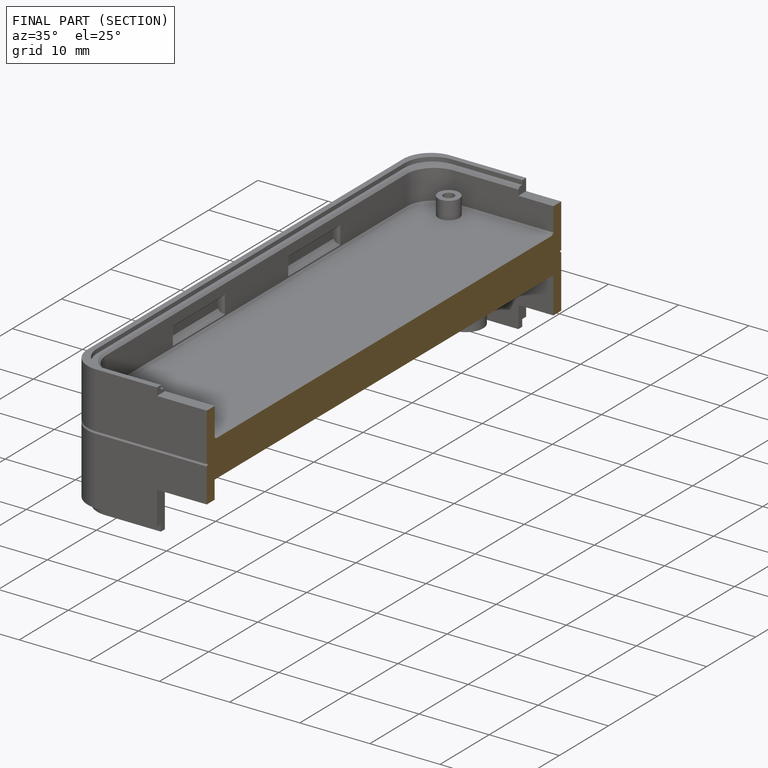
[diagram: finished part — half-section view (interior)]
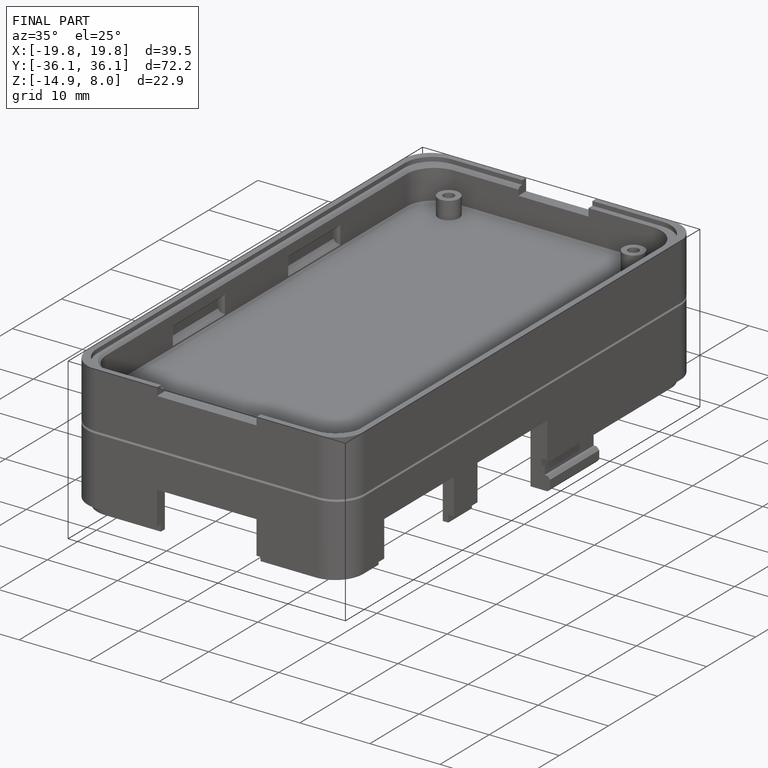
[diagram: finished part — iso view with bounding-box wireframe]
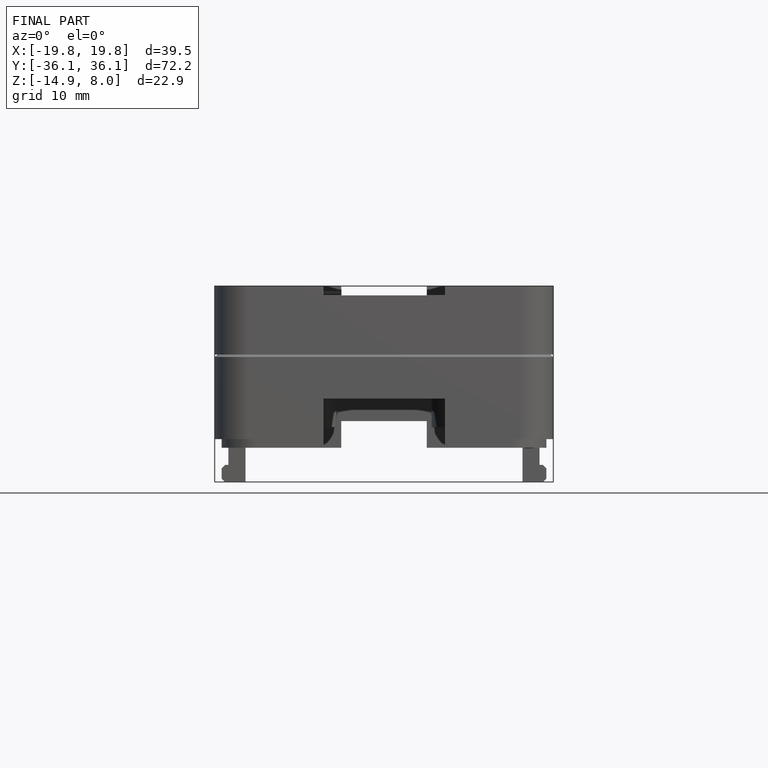
[diagram: finished part — front view with bounding-box wireframe]
